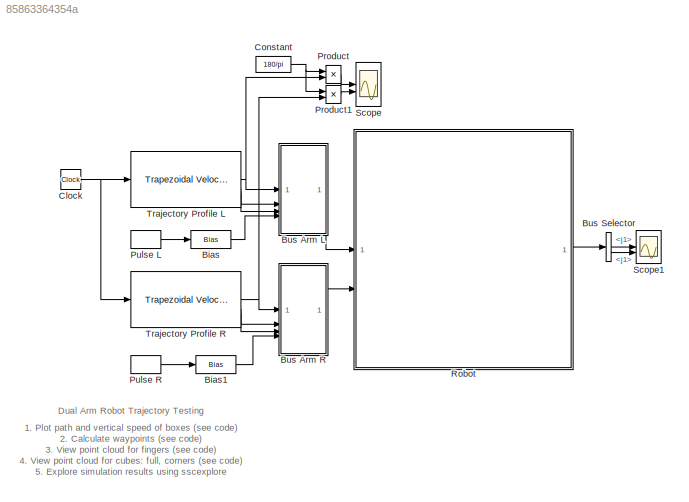
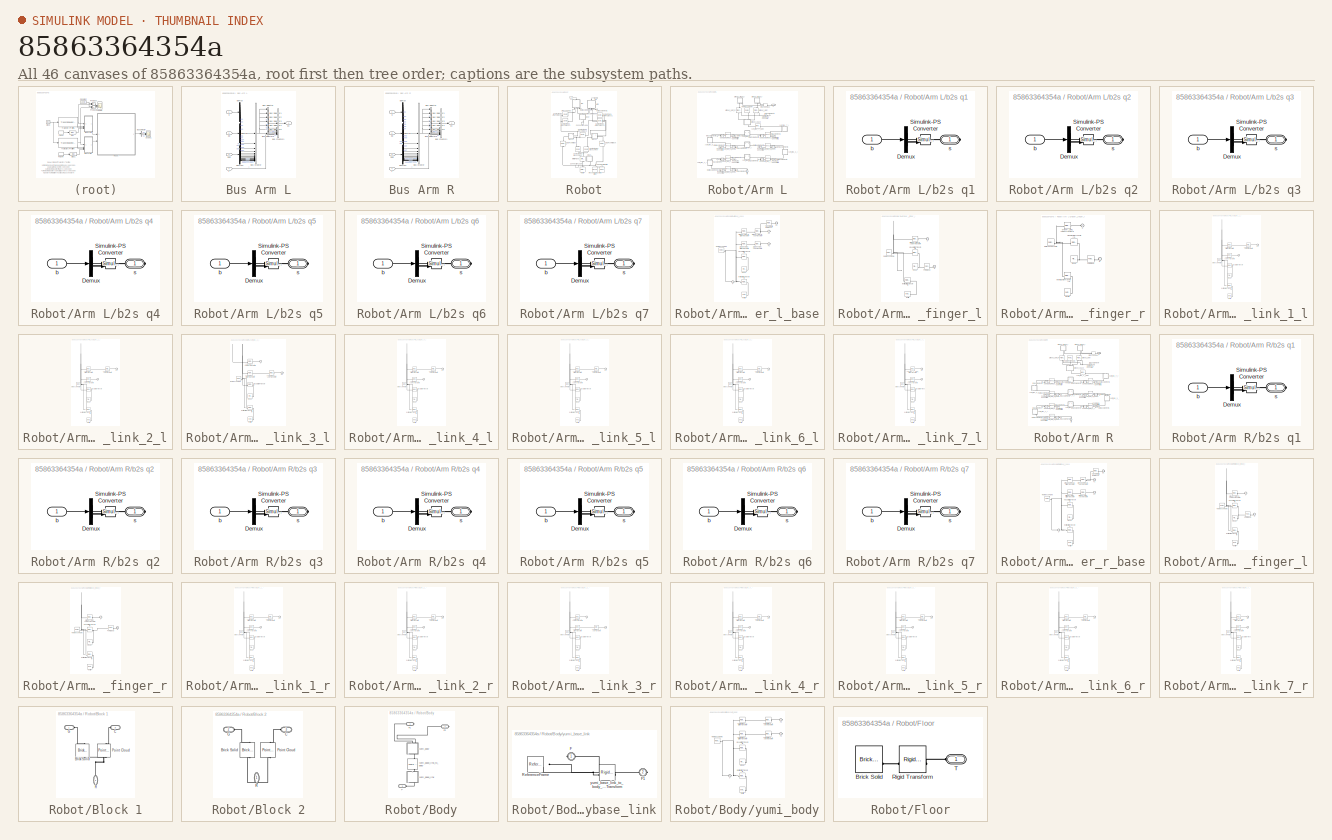
[diagram: thumbnail index - all 46 canvases of the model, root first then tree order]
MODEL slx_85863364354a
KIND model
CONFIG AbsTol = 1e-3
CONFIG EnableMultiTasking = off
CONFIG FixedStep = auto
CONFIG MaxStep = 0.5
CONFIG MinStep = auto
CONFIG RelTol = 1e-3
CONFIG SampleTimeConstraint = Unconstrained
CONFIG SolverName = daessc
CONFIG StartTime = 0.0
CONFIG StopTime = size(waypointsL,2)*segment_duration
BLOCK [Bias] Bias
  Bias = 0.02
  SaturateOnIntegerOverflow = off
BLOCK [Bias] Bias1
  Bias = 0.02
  SaturateOnIntegerOverflow = off
BLOCK [SubSystem] Bus Arm L
BLOCK [BusCreator] Bus Arm L/Bus Creator
  DisplayOption = bar
  InheritFromInputs = on
  Inputs = 21
BLOCK [BusCreator] Bus Arm L/Bus Creator1
  DisplayOption = bar
  InheritFromInputs = on
  Inputs = 8
BLOCK [BusSelector] Bus Arm L/Bus Selector
  OutputAsBus = on
  OutputSignals = q1,qd1,qdd1
BLOCK [BusSelector] Bus Arm L/Bus Selector1
  OutputAsBus = on
  OutputSignals = q2,qd2,qdd2
BLOCK [BusSelector] Bus Arm L/Bus Selector2
  OutputAsBus = on
  OutputSignals = q3,qd3,qdd3
BLOCK [BusSelector] Bus Arm L/Bus Selector3
  OutputAsBus = on
  OutputSignals = q4,qd4,qdd4
BLOCK [BusSelector] Bus Arm L/Bus Selector4
  OutputAsBus = on
  OutputSignals = q5,qd5,qdd5
BLOCK [BusSelector] Bus Arm L/Bus Selector5
  OutputAsBus = on
  OutputSignals = q6,qd6,qdd6
BLOCK [BusSelector] Bus Arm L/Bus Selector6
  OutputAsBus = on
  OutputSignals = q7,qd7,qdd7
BLOCK [Demux] Bus Arm L/Demux
  Outputs = 7
BLOCK [Demux] Bus Arm L/Demux1
  Outputs = 7
BLOCK [Demux] Bus Arm L/Demux2
  Outputs = 7
BLOCK [Inport] Bus Arm L/f
  Port = 4
BLOCK [Inport] Bus Arm L/q
BLOCK [Outport] Bus Arm L/qV
BLOCK [Inport] Bus Arm L/qd
  Port = 2
BLOCK [Inport] Bus Arm L/qdd
  Port = 3
BLOCK [SubSystem] Bus Arm R
BLOCK [BusCreator] Bus Arm R/Bus Creator
  DisplayOption = bar
  InheritFromInputs = on
  Inputs = 21
BLOCK [BusCreator] Bus Arm R/Bus Creator1
  DisplayOption = bar
  InheritFromInputs = on
  Inputs = 8
BLOCK [BusSelector] Bus Arm R/Bus Selector
  OutputAsBus = on
  OutputSignals = q1,qd1,qdd1
BLOCK [BusSelector] Bus Arm R/Bus Selector1
  OutputAsBus = on
  OutputSignals = q2,qd2,qdd2
BLOCK [BusSelector] Bus Arm R/Bus Selector2
  OutputAsBus = on
  OutputSignals = q3,qd3,qdd3
BLOCK [BusSelector] Bus Arm R/Bus Selector3
  OutputAsBus = on
  OutputSignals = q4,qd4,qdd4
BLOCK [BusSelector] Bus Arm R/Bus Selector4
  OutputAsBus = on
  OutputSignals = q5,qd5,qdd5
BLOCK [BusSelector] Bus Arm R/Bus Selector5
  OutputAsBus = on
  OutputSignals = q6,qd6,qdd6
BLOCK [BusSelector] Bus Arm R/Bus Selector6
  OutputAsBus = on
  OutputSignals = q7,qd7,qdd7
BLOCK [Demux] Bus Arm R/Demux
  Outputs = 7
BLOCK [Demux] Bus Arm R/Demux1
  Outputs = 7
BLOCK [Demux] Bus Arm R/Demux2
  Outputs = 7
BLOCK [Inport] Bus Arm R/f
  Port = 4
BLOCK [Inport] Bus Arm R/q
BLOCK [Outport] Bus Arm R/qV
BLOCK [Inport] Bus Arm R/qd
  Port = 2
BLOCK [Inport] Bus Arm R/qdd
  Port = 3
BLOCK [BusSelector] Bus Selector
  OutputSignals = trqL.j1,trqR.j1
BLOCK [Clock] Clock
BLOCK [Constant] Constant
  Value = 180/pi
BLOCK [Product] Product
BLOCK [Product] Product1
BLOCK [DiscretePulseGenerator] Pulse L
  Amplitude = -0.011
  Period = 100
  PhaseDelay = 2*segment_duration
  PulseType = Time based
  PulseWidth = 4*segment_duration
BLOCK [DiscretePulseGenerator] Pulse R
  Amplitude = -0.011
  Period = 100
  PhaseDelay = 6*segment_duration
  PulseType = Time based
  PulseWidth = 4*segment_duration
BLOCK [SubSystem] Robot
BLOCK [Reference] Robot/ Contact Force Block to Block  REF=sm_lib/Forces and
Torques/Spatial
Contact Force
  NameLocation = top
  SourceBlock = sm_lib/Forces and\nTorques/Spatial\nContact Force
  SourceType = Spatial\nContact Force
BLOCK [Reference] Robot/6-DOF Joint Block 1  REF=sm_lib/Joints/6-DOF Joint
  NameLocation = right
  SourceBlock = sm_lib/Joints/6-DOF Joint
  SourceType = 6-DOF Joint
BLOCK [Reference] Robot/6-DOF Joint Block 2  REF=sm_lib/Joints/6-DOF Joint
  NameLocation = left
  SourceBlock = sm_lib/Joints/6-DOF Joint
  SourceType = 6-DOF Joint
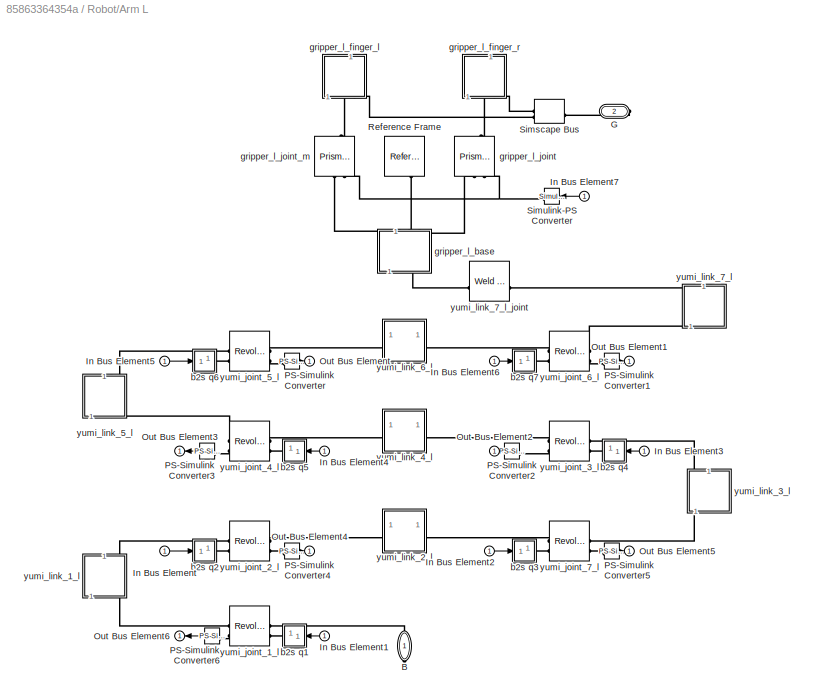
BLOCK [SubSystem] Robot/Arm L
  NameLocation = left
BLOCK [PMIOPort] Robot/Arm L/B
  NameLocation = right
  Side = Right
BLOCK [PMIOPort] Robot/Arm L/G
  Port = 2
  Side = Right
BLOCK [Inport] Robot/Arm L/In Bus Element
  NameLocation = top
BLOCK [Inport] Robot/Arm L/In Bus Element1
BLOCK [Inport] Robot/Arm L/In Bus Element2
BLOCK [Inport] Robot/Arm L/In Bus Element3
  NameLocation = top
BLOCK [Inport] Robot/Arm L/In Bus Element4
BLOCK [Inport] Robot/Arm L/In Bus Element5
BLOCK [Inport] Robot/Arm L/In Bus Element6
BLOCK [Inport] Robot/Arm L/In Bus Element7
BLOCK [Outport] Robot/Arm L/Out Bus Element
BLOCK [Outport] Robot/Arm L/Out Bus Element1
BLOCK [Outport] Robot/Arm L/Out Bus Element2
BLOCK [Outport] Robot/Arm L/Out Bus Element3
BLOCK [Outport] Robot/Arm L/Out Bus Element4
BLOCK [Outport] Robot/Arm L/Out Bus Element5
BLOCK [Outport] Robot/Arm L/Out Bus Element6
BLOCK [Reference] Robot/Arm L/PS-Simulink Converter  REF=nesl_utility/PS-Simulink
Converter
  SourceBlock = nesl_utility/PS-Simulink\nConverter
  SourceType = PS-Simulink\nConverter
BLOCK [Reference] Robot/Arm L/PS-Simulink Converter1  REF=nesl_utility/PS-Simulink
Converter
  SourceBlock = nesl_utility/PS-Simulink\nConverter
  SourceType = PS-Simulink\nConverter
BLOCK [Reference] Robot/Arm L/PS-Simulink Converter2  REF=nesl_utility/PS-Simulink
Converter
  SourceBlock = nesl_utility/PS-Simulink\nConverter
  SourceType = PS-Simulink\nConverter
BLOCK [Reference] Robot/Arm L/PS-Simulink Converter3  REF=nesl_utility/PS-Simulink
Converter
  SourceBlock = nesl_utility/PS-Simulink\nConverter
  SourceType = PS-Simulink\nConverter
BLOCK [Reference] Robot/Arm L/PS-Simulink Converter4  REF=nesl_utility/PS-Simulink
Converter
  SourceBlock = nesl_utility/PS-Simulink\nConverter
  SourceType = PS-Simulink\nConverter
BLOCK [Reference] Robot/Arm L/PS-Simulink Converter5  REF=nesl_utility/PS-Simulink
Converter
  SourceBlock = nesl_utility/PS-Simulink\nConverter
  SourceType = PS-Simulink\nConverter
BLOCK [Reference] Robot/Arm L/PS-Simulink Converter6  REF=nesl_utility/PS-Simulink
Converter
  SourceBlock = nesl_utility/PS-Simulink\nConverter
  SourceType = PS-Simulink\nConverter
BLOCK [Reference] Robot/Arm L/Reference Frame  REF=sm_lib/Frames and
Transforms/Reference
Frame
  NameLocation = right
  SourceBlock = sm_lib/Frames and\nTransforms/Reference\nFrame
  SourceType = Reference\nFrame
BLOCK [SimscapeBus] Robot/Arm L/Simscape Bus
  HierarchyStrings = F1;F2
BLOCK [Reference] Robot/Arm L/Simulink-PS Converter  REF=nesl_utility/Simulink-PS
Converter
  NameLocation = top
  SourceBlock = nesl_utility/Simulink-PS\nConverter
  SourceType = Simulink-PS\nConverter
BLOCK [SubSystem] Robot/Arm L/b2s q1
BLOCK [Demux] Robot/Arm L/b2s q1/Demux
  Outputs = 3
BLOCK [Reference] Robot/Arm L/b2s q1/Simulink-PS Converter  REF=nesl_utility/Simulink-PS
Converter
  SourceBlock = nesl_utility/Simulink-PS\nConverter
  SourceType = Simulink-PS\nConverter
BLOCK [Inport] Robot/Arm L/b2s q1/b
BLOCK [PMIOPort] Robot/Arm L/b2s q1/s
  Side = Right
BLOCK [SubSystem] Robot/Arm L/b2s q2
BLOCK [Demux] Robot/Arm L/b2s q2/Demux
  Outputs = 3
BLOCK [Reference] Robot/Arm L/b2s q2/Simulink-PS Converter  REF=nesl_utility/Simulink-PS
Converter
  SourceBlock = nesl_utility/Simulink-PS\nConverter
  SourceType = Simulink-PS\nConverter
BLOCK [Inport] Robot/Arm L/b2s q2/b
BLOCK [PMIOPort] Robot/Arm L/b2s q2/s
  Side = Right
BLOCK [SubSystem] Robot/Arm L/b2s q3
BLOCK [Demux] Robot/Arm L/b2s q3/Demux
  Outputs = 3
BLOCK [Reference] Robot/Arm L/b2s q3/Simulink-PS Converter  REF=nesl_utility/Simulink-PS
Converter
  SourceBlock = nesl_utility/Simulink-PS\nConverter
  SourceType = Simulink-PS\nConverter
BLOCK [Inport] Robot/Arm L/b2s q3/b
BLOCK [PMIOPort] Robot/Arm L/b2s q3/s
  Side = Right
BLOCK [SubSystem] Robot/Arm L/b2s q4
BLOCK [Demux] Robot/Arm L/b2s q4/Demux
  Outputs = 3
BLOCK [Reference] Robot/Arm L/b2s q4/Simulink-PS Converter  REF=nesl_utility/Simulink-PS
Converter
  SourceBlock = nesl_utility/Simulink-PS\nConverter
  SourceType = Simulink-PS\nConverter
BLOCK [Inport] Robot/Arm L/b2s q4/b
BLOCK [PMIOPort] Robot/Arm L/b2s q4/s
  Side = Right
BLOCK [SubSystem] Robot/Arm L/b2s q5
BLOCK [Demux] Robot/Arm L/b2s q5/Demux
  Outputs = 3
BLOCK [Reference] Robot/Arm L/b2s q5/Simulink-PS Converter  REF=nesl_utility/Simulink-PS
Converter
  SourceBlock = nesl_utility/Simulink-PS\nConverter
  SourceType = Simulink-PS\nConverter
BLOCK [Inport] Robot/Arm L/b2s q5/b
BLOCK [PMIOPort] Robot/Arm L/b2s q5/s
  Side = Right
BLOCK [SubSystem] Robot/Arm L/b2s q6
BLOCK [Demux] Robot/Arm L/b2s q6/Demux
  Outputs = 3
BLOCK [Reference] Robot/Arm L/b2s q6/Simulink-PS Converter  REF=nesl_utility/Simulink-PS
Converter
  SourceBlock = nesl_utility/Simulink-PS\nConverter
  SourceType = Simulink-PS\nConverter
BLOCK [Inport] Robot/Arm L/b2s q6/b
BLOCK [PMIOPort] Robot/Arm L/b2s q6/s
  Side = Right
BLOCK [SubSystem] Robot/Arm L/b2s q7
BLOCK [Demux] Robot/Arm L/b2s q7/Demux
  Outputs = 3
BLOCK [Reference] Robot/Arm L/b2s q7/Simulink-PS Converter  REF=nesl_utility/Simulink-PS
Converter
  SourceBlock = nesl_utility/Simulink-PS\nConverter
  SourceType = Simulink-PS\nConverter
BLOCK [Inport] Robot/Arm L/b2s q7/b
BLOCK [PMIOPort] Robot/Arm L/b2s q7/s
  Side = Right
BLOCK [SubSystem] Robot/Arm L/gripper_l_base
  NameLocation = left
BLOCK [PMIOPort] Robot/Arm L/gripper_l_base/F
  Side = Left
BLOCK [PMIOPort] Robot/Arm L/gripper_l_base/F1
  Port = 4
  Side = Right
BLOCK [PMIOPort] Robot/Arm L/gripper_l_base/F2
  Port = 2
  Side = Right
BLOCK [PMIOPort] Robot/Arm L/gripper_l_base/GC
  Port = 3
  Side = Right
BLOCK [Reference] Robot/Arm L/gripper_l_base/Inertia  REF=sm_lib/Body Elements/Inertia
  SourceBlock = sm_lib/Body Elements/Inertia
  SourceType = Inertia
BLOCK [Reference] Robot/Arm L/gripper_l_base/InertiaOriginTransform  REF=sm_lib/Frames and
Transforms/Rigid
Transform
  SourceBlock = sm_lib/Frames and\nTransforms/Rigid\nTransform
  SourceType = Rigid\nTransform
BLOCK [Reference] Robot/Arm L/gripper_l_base/ReferenceFrame  REF=sm_lib/Frames and
Transforms/Reference
Frame
  SourceBlock = sm_lib/Frames and\nTransforms/Reference\nFrame
  SourceType = Reference\nFrame
BLOCK [Reference] Robot/Arm L/gripper_l_base/Transform Grip Reference  REF=sm_lib/Frames and
Transforms/Rigid
Transform
  SourceBlock = sm_lib/Frames and\nTransforms/Rigid\nTransform
  SourceType = Rigid\nTransform
BLOCK [Reference] Robot/Arm L/gripper_l_base/Visual  REF=sm_lib/Body Elements/File Solid
  SourceBlock = sm_lib/Body Elements/File Solid
  SourceType = File Solid
BLOCK [Reference] Robot/Arm L/gripper_l_base/VisualOriginTransform  REF=sm_lib/Frames and
Transforms/Rigid
Transform
  SourceBlock = sm_lib/Frames and\nTransforms/Rigid\nTransform
  SourceType = Rigid\nTransform
BLOCK [Reference] Robot/Arm L/gripper_l_base/gripper_l_joint_AxisTransform  REF=sm_lib/Frames and
Transforms/Rigid
Transform
  SourceBlock = sm_lib/Frames and\nTransforms/Rigid\nTransform
  SourceType = Rigid\nTransform
BLOCK [Reference] Robot/Arm L/gripper_l_base/gripper_l_joint_OriginTransform  REF=sm_lib/Frames and
Transforms/Rigid
Transform
  SourceBlock = sm_lib/Frames and\nTransforms/Rigid\nTransform
  SourceType = Rigid\nTransform
BLOCK [Reference] Robot/Arm L/gripper_l_base/gripper_l_joint_m_AxisTransform  REF=sm_lib/Frames and
Transforms/Rigid
Transform
  SourceBlock = sm_lib/Frames and\nTransforms/Rigid\nTransform
  SourceType = Rigid\nTransform
BLOCK [Reference] Robot/Arm L/gripper_l_base/gripper_l_joint_m_OriginTransform  REF=sm_lib/Frames and
Transforms/Rigid
Transform
  SourceBlock = sm_lib/Frames and\nTransforms/Rigid\nTransform
  SourceType = Rigid\nTransform
BLOCK [SubSystem] Robot/Arm L/gripper_l_finger_l
  NameLocation = left
BLOCK [PMIOPort] Robot/Arm L/gripper_l_finger_l/F
  Side = Left
BLOCK [PMIOPort] Robot/Arm L/gripper_l_finger_l/G
  Port = 2
  Side = Left
BLOCK [Reference] Robot/Arm L/gripper_l_finger_l/Inertia  REF=sm_lib/Body Elements/Inertia
  SourceBlock = sm_lib/Body Elements/Inertia
  SourceType = Inertia
BLOCK [Reference] Robot/Arm L/gripper_l_finger_l/InertiaOriginTransform  REF=sm_lib/Frames and
Transforms/Rigid
Transform
  SourceBlock = sm_lib/Frames and\nTransforms/Rigid\nTransform
  SourceType = Rigid\nTransform
BLOCK [Reference] Robot/Arm L/gripper_l_finger_l/Point Cloud  REF=sm_lib/Curves and Surfaces/Point Cloud
  SourceBlock = sm_lib/Curves and Surfaces/Point Cloud
  SourceType = Point Cloud
BLOCK [Reference] Robot/Arm L/gripper_l_finger_l/ReferenceFrame  REF=sm_lib/Frames and
Transforms/Reference
Frame
  SourceBlock = sm_lib/Frames and\nTransforms/Reference\nFrame
  SourceType = Reference\nFrame
BLOCK [Reference] Robot/Arm L/gripper_l_finger_l/Visual  REF=sm_lib/Body Elements/File Solid
  SourceBlock = sm_lib/Body Elements/File Solid
  SourceType = File Solid
BLOCK [Reference] Robot/Arm L/gripper_l_finger_l/VisualOriginTransform  REF=sm_lib/Frames and
Transforms/Rigid
Transform
  SourceBlock = sm_lib/Frames and\nTransforms/Rigid\nTransform
  SourceType = Rigid\nTransform
BLOCK [Reference] Robot/Arm L/gripper_l_finger_l/gripper_l_joint_m_AxisInvTransform  REF=sm_lib/Frames and
Transforms/Rigid
Transform
  SourceBlock = sm_lib/Frames and\nTransforms/Rigid\nTransform
  SourceType = Rigid\nTransform
BLOCK [SubSystem] Robot/Arm L/gripper_l_finger_r
  NameLocation = right
BLOCK [PMIOPort] Robot/Arm L/gripper_l_finger_r/F
  Side = Left
BLOCK [PMIOPort] Robot/Arm L/gripper_l_finger_r/G
  Port = 2
  Side = Left
BLOCK [Reference] Robot/Arm L/gripper_l_finger_r/Inertia  REF=sm_lib/Body Elements/Inertia
  SourceBlock = sm_lib/Body Elements/Inertia
  SourceType = Inertia
BLOCK [Reference] Robot/Arm L/gripper_l_finger_r/InertiaOriginTransform  REF=sm_lib/Frames and
Transforms/Rigid
Transform
  SourceBlock = sm_lib/Frames and\nTransforms/Rigid\nTransform
  SourceType = Rigid\nTransform
BLOCK [Reference] Robot/Arm L/gripper_l_finger_r/Point Cloud  REF=sm_lib/Curves and Surfaces/Point Cloud
  SourceBlock = sm_lib/Curves and Surfaces/Point Cloud
  SourceType = Point Cloud
BLOCK [Reference] Robot/Arm L/gripper_l_finger_r/ReferenceFrame  REF=sm_lib/Frames and
Transforms/Reference
Frame
  SourceBlock = sm_lib/Frames and\nTransforms/Reference\nFrame
  SourceType = Reference\nFrame
BLOCK [Reference] Robot/Arm L/gripper_l_finger_r/Visual  REF=sm_lib/Body Elements/File Solid
  SourceBlock = sm_lib/Body Elements/File Solid
  SourceType = File Solid
BLOCK [Reference] Robot/Arm L/gripper_l_finger_r/VisualOriginTransform  REF=sm_lib/Frames and
Transforms/Rigid
Transform
  SourceBlock = sm_lib/Frames and\nTransforms/Rigid\nTransform
  SourceType = Rigid\nTransform
BLOCK [Reference] Robot/Arm L/gripper_l_finger_r/gripper_l_joint_AxisInvTransform  REF=sm_lib/Frames and
Transforms/Rigid
Transform
  SourceBlock = sm_lib/Frames and\nTransforms/Rigid\nTransform
  SourceType = Rigid\nTransform
BLOCK [Reference] Robot/Arm L/gripper_l_joint  REF=sm_lib/Joints/Prismatic
Joint
  NameLocation = right
  SourceBlock = sm_lib/Joints/Prismatic\nJoint
  SourceType = Prismatic\nJoint
BLOCK [Reference] Robot/Arm L/gripper_l_joint_m  REF=sm_lib/Joints/Prismatic
Joint
  NameLocation = left
  SourceBlock = sm_lib/Joints/Prismatic\nJoint
  SourceType = Prismatic\nJoint
BLOCK [Reference] Robot/Arm L/yumi_joint_1_l  REF=sm_lib/Joints/Revolute Joint
  SourceBlock = sm_lib/Joints/Revolute Joint
  SourceType = Revolute Joint
BLOCK [Reference] Robot/Arm L/yumi_joint_2_l  REF=sm_lib/Joints/Revolute Joint
  SourceBlock = sm_lib/Joints/Revolute Joint
  SourceType = Revolute Joint
BLOCK [Reference] Robot/Arm L/yumi_joint_3_l  REF=sm_lib/Joints/Revolute Joint
  SourceBlock = sm_lib/Joints/Revolute Joint
  SourceType = Revolute Joint
BLOCK [Reference] Robot/Arm L/yumi_joint_4_l  REF=sm_lib/Joints/Revolute Joint
  SourceBlock = sm_lib/Joints/Revolute Joint
  SourceType = Revolute Joint
BLOCK [Reference] Robot/Arm L/yumi_joint_5_l  REF=sm_lib/Joints/Revolute Joint
  SourceBlock = sm_lib/Joints/Revolute Joint
  SourceType = Revolute Joint
BLOCK [Reference] Robot/Arm L/yumi_joint_6_l  REF=sm_lib/Joints/Revolute Joint
  SourceBlock = sm_lib/Joints/Revolute Joint
  SourceType = Revolute Joint
BLOCK [Reference] Robot/Arm L/yumi_joint_7_l  REF=sm_lib/Joints/Revolute Joint
  SourceBlock = sm_lib/Joints/Revolute Joint
  SourceType = Revolute Joint
BLOCK [SubSystem] Robot/Arm L/yumi_link_1_l
  NameLocation = right
BLOCK [PMIOPort] Robot/Arm L/yumi_link_1_l/F
  Side = Left
BLOCK [PMIOPort] Robot/Arm L/yumi_link_1_l/F1
  Port = 2
  Side = Right
BLOCK [Reference] Robot/Arm L/yumi_link_1_l/Inertia  REF=sm_lib/Body Elements/Inertia
  SourceBlock = sm_lib/Body Elements/Inertia
  SourceType = Inertia
BLOCK [Reference] Robot/Arm L/yumi_link_1_l/InertiaOriginTransform  REF=sm_lib/Frames and
Transforms/Rigid
Transform
  SourceBlock = sm_lib/Frames and\nTransforms/Rigid\nTransform
  SourceType = Rigid\nTransform
BLOCK [Reference] Robot/Arm L/yumi_link_1_l/ReferenceFrame  REF=sm_lib/Frames and
Transforms/Reference
Frame
  SourceBlock = sm_lib/Frames and\nTransforms/Reference\nFrame
  SourceType = Reference\nFrame
BLOCK [Reference] Robot/Arm L/yumi_link_1_l/Visual  REF=sm_lib/Body Elements/File Solid
  SourceBlock = sm_lib/Body Elements/File Solid
  SourceType = File Solid
BLOCK [Reference] Robot/Arm L/yumi_link_1_l/VisualOriginTransform  REF=sm_lib/Frames and
Transforms/Rigid
Transform
  SourceBlock = sm_lib/Frames and\nTransforms/Rigid\nTransform
  SourceType = Rigid\nTransform
BLOCK [Reference] Robot/Arm L/yumi_link_1_l/yumi_joint_1_l_AxisInvTransform  REF=sm_lib/Frames and
Transforms/Rigid
Transform
  SourceBlock = sm_lib/Frames and\nTransforms/Rigid\nTransform
  SourceType = Rigid\nTransform
BLOCK [Reference] Robot/Arm L/yumi_link_1_l/yumi_joint_2_l_AxisTransform  REF=sm_lib/Frames and
Transforms/Rigid
Transform
  SourceBlock = sm_lib/Frames and\nTransforms/Rigid\nTransform
  SourceType = Rigid\nTransform
BLOCK [Reference] Robot/Arm L/yumi_link_1_l/yumi_joint_2_l_OriginTransform  REF=sm_lib/Frames and
Transforms/Rigid
Transform
  SourceBlock = sm_lib/Frames and\nTransforms/Rigid\nTransform
  SourceType = Rigid\nTransform
BLOCK [SubSystem] Robot/Arm L/yumi_link_2_l
BLOCK [PMIOPort] Robot/Arm L/yumi_link_2_l/F
  Side = Left
BLOCK [PMIOPort] Robot/Arm L/yumi_link_2_l/F1
  Port = 2
  Side = Right
BLOCK [Reference] Robot/Arm L/yumi_link_2_l/Inertia  REF=sm_lib/Body Elements/Inertia
  SourceBlock = sm_lib/Body Elements/Inertia
  SourceType = Inertia
BLOCK [Reference] Robot/Arm L/yumi_link_2_l/InertiaOriginTransform  REF=sm_lib/Frames and
Transforms/Rigid
Transform
  SourceBlock = sm_lib/Frames and\nTransforms/Rigid\nTransform
  SourceType = Rigid\nTransform
BLOCK [Reference] Robot/Arm L/yumi_link_2_l/ReferenceFrame  REF=sm_lib/Frames and
Transforms/Reference
Frame
  SourceBlock = sm_lib/Frames and\nTransforms/Reference\nFrame
  SourceType = Reference\nFrame
BLOCK [Reference] Robot/Arm L/yumi_link_2_l/Visual  REF=sm_lib/Body Elements/File Solid
  SourceBlock = sm_lib/Body Elements/File Solid
  SourceType = File Solid
BLOCK [Reference] Robot/Arm L/yumi_link_2_l/VisualOriginTransform  REF=sm_lib/Frames and
Transforms/Rigid
Transform
  SourceBlock = sm_lib/Frames and\nTransforms/Rigid\nTransform
  SourceType = Rigid\nTransform
BLOCK [Reference] Robot/Arm L/yumi_link_2_l/yumi_joint_2_l_AxisInvTransform  REF=sm_lib/Frames and
Transforms/Rigid
Transform
  SourceBlock = sm_lib/Frames and\nTransforms/Rigid\nTransform
  SourceType = Rigid\nTransform
BLOCK [Reference] Robot/Arm L/yumi_link_2_l/yumi_joint_7_l_AxisTransform  REF=sm_lib/Frames and
Transforms/Rigid
Transform
  SourceBlock = sm_lib/Frames and\nTransforms/Rigid\nTransform
  SourceType = Rigid\nTransform
BLOCK [Reference] Robot/Arm L/yumi_link_2_l/yumi_joint_7_l_OriginTransform  REF=sm_lib/Frames and
Transforms/Rigid
Transform
  SourceBlock = sm_lib/Frames and\nTransforms/Rigid\nTransform
  SourceType = Rigid\nTransform
BLOCK [SubSystem] Robot/Arm L/yumi_link_3_l
  NameLocation = left
BLOCK [PMIOPort] Robot/Arm L/yumi_link_3_l/F
  Side = Left
BLOCK [PMIOPort] Robot/Arm L/yumi_link_3_l/F1
  Port = 2
  Side = Right
BLOCK [Reference] Robot/Arm L/yumi_link_3_l/Inertia  REF=sm_lib/Body Elements/Inertia
  SourceBlock = sm_lib/Body Elements/Inertia
  SourceType = Inertia
BLOCK [Reference] Robot/Arm L/yumi_link_3_l/InertiaOriginTransform  REF=sm_lib/Frames and
Transforms/Rigid
Transform
  SourceBlock = sm_lib/Frames and\nTransforms/Rigid\nTransform
  SourceType = Rigid\nTransform
BLOCK [Reference] Robot/Arm L/yumi_link_3_l/ReferenceFrame  REF=sm_lib/Frames and
Transforms/Reference
Frame
  SourceBlock = sm_lib/Frames and\nTransforms/Reference\nFrame
  SourceType = Reference\nFrame
BLOCK [Reference] Robot/Arm L/yumi_link_3_l/Visual  REF=sm_lib/Body Elements/File Solid
  SourceBlock = sm_lib/Body Elements/File Solid
  SourceType = File Solid
BLOCK [Reference] Robot/Arm L/yumi_link_3_l/VisualOriginTransform  REF=sm_lib/Frames and
Transforms/Rigid
Transform
  SourceBlock = sm_lib/Frames and\nTransforms/Rigid\nTransform
  SourceType = Rigid\nTransform
BLOCK [Reference] Robot/Arm L/yumi_link_3_l/yumi_joint_3_l_AxisTransform  REF=sm_lib/Frames and
Transforms/Rigid
Transform
  SourceBlock = sm_lib/Frames and\nTransforms/Rigid\nTransform
  SourceType = Rigid\nTransform
BLOCK [Reference] Robot/Arm L/yumi_link_3_l/yumi_joint_3_l_OriginTransform  REF=sm_lib/Frames and
Transforms/Rigid
Transform
  SourceBlock = sm_lib/Frames and\nTransforms/Rigid\nTransform
  SourceType = Rigid\nTransform
BLOCK [Reference] Robot/Arm L/yumi_link_3_l/yumi_joint_7_l_AxisInvTransform  REF=sm_lib/Frames and
Transforms/Rigid
Transform
  SourceBlock = sm_lib/Frames and\nTransforms/Rigid\nTransform
  SourceType = Rigid\nTransform
BLOCK [SubSystem] Robot/Arm L/yumi_link_4_l
BLOCK [PMIOPort] Robot/Arm L/yumi_link_4_l/F
  Side = Left
BLOCK [PMIOPort] Robot/Arm L/yumi_link_4_l/F1
  Port = 2
  Side = Right
BLOCK [Reference] Robot/Arm L/yumi_link_4_l/Inertia  REF=sm_lib/Body Elements/Inertia
  SourceBlock = sm_lib/Body Elements/Inertia
  SourceType = Inertia
BLOCK [Reference] Robot/Arm L/yumi_link_4_l/InertiaOriginTransform  REF=sm_lib/Frames and
Transforms/Rigid
Transform
  SourceBlock = sm_lib/Frames and\nTransforms/Rigid\nTransform
  SourceType = Rigid\nTransform
BLOCK [Reference] Robot/Arm L/yumi_link_4_l/ReferenceFrame  REF=sm_lib/Frames and
Transforms/Reference
Frame
  SourceBlock = sm_lib/Frames and\nTransforms/Reference\nFrame
  SourceType = Reference\nFrame
BLOCK [Reference] Robot/Arm L/yumi_link_4_l/Visual  REF=sm_lib/Body Elements/File Solid
  SourceBlock = sm_lib/Body Elements/File Solid
  SourceType = File Solid
BLOCK [Reference] Robot/Arm L/yumi_link_4_l/VisualOriginTransform  REF=sm_lib/Frames and
Transforms/Rigid
Transform
  SourceBlock = sm_lib/Frames and\nTransforms/Rigid\nTransform
  SourceType = Rigid\nTransform
BLOCK [Reference] Robot/Arm L/yumi_link_4_l/yumi_joint_3_l_AxisInvTransform  REF=sm_lib/Frames and
Transforms/Rigid
Transform
  SourceBlock = sm_lib/Frames and\nTransforms/Rigid\nTransform
  SourceType = Rigid\nTransform
BLOCK [Reference] Robot/Arm L/yumi_link_4_l/yumi_joint_4_l_AxisTransform  REF=sm_lib/Frames and
Transforms/Rigid
Transform
  SourceBlock = sm_lib/Frames and\nTransforms/Rigid\nTransform
  SourceType = Rigid\nTransform
BLOCK [Reference] Robot/Arm L/yumi_link_4_l/yumi_joint_4_l_OriginTransform  REF=sm_lib/Frames and
Transforms/Rigid
Transform
  SourceBlock = sm_lib/Frames and\nTransforms/Rigid\nTransform
  SourceType = Rigid\nTransform
BLOCK [SubSystem] Robot/Arm L/yumi_link_5_l
  NameLocation = right
BLOCK [PMIOPort] Robot/Arm L/yumi_link_5_l/F
  Side = Left
BLOCK [PMIOPort] Robot/Arm L/yumi_link_5_l/F1
  Port = 2
  Side = Right
BLOCK [Reference] Robot/Arm L/yumi_link_5_l/Inertia  REF=sm_lib/Body Elements/Inertia
  SourceBlock = sm_lib/Body Elements/Inertia
  SourceType = Inertia
BLOCK [Reference] Robot/Arm L/yumi_link_5_l/InertiaOriginTransform  REF=sm_lib/Frames and
Transforms/Rigid
Transform
  SourceBlock = sm_lib/Frames and\nTransforms/Rigid\nTransform
  SourceType = Rigid\nTransform
BLOCK [Reference] Robot/Arm L/yumi_link_5_l/ReferenceFrame  REF=sm_lib/Frames and
Transforms/Reference
Frame
  SourceBlock = sm_lib/Frames and\nTransforms/Reference\nFrame
  SourceType = Reference\nFrame
BLOCK [Reference] Robot/Arm L/yumi_link_5_l/Visual  REF=sm_lib/Body Elements/File Solid
  SourceBlock = sm_lib/Body Elements/File Solid
  SourceType = File Solid
BLOCK [Reference] Robot/Arm L/yumi_link_5_l/VisualOriginTransform  REF=sm_lib/Frames and
Transforms/Rigid
Transform
  SourceBlock = sm_lib/Frames and\nTransforms/Rigid\nTransform
  SourceType = Rigid\nTransform
BLOCK [Reference] Robot/Arm L/yumi_link_5_l/yumi_joint_4_l_AxisInvTransform  REF=sm_lib/Frames and
Transforms/Rigid
Transform
  SourceBlock = sm_lib/Frames and\nTransforms/Rigid\nTransform
  SourceType = Rigid\nTransform
BLOCK [Reference] Robot/Arm L/yumi_link_5_l/yumi_joint_5_l_AxisTransform  REF=sm_lib/Frames and
Transforms/Rigid
Transform
  SourceBlock = sm_lib/Frames and\nTransforms/Rigid\nTransform
  SourceType = Rigid\nTransform
BLOCK [Reference] Robot/Arm L/yumi_link_5_l/yumi_joint_5_l_OriginTransform  REF=sm_lib/Frames and
Transforms/Rigid
Transform
  SourceBlock = sm_lib/Frames and\nTransforms/Rigid\nTransform
  SourceType = Rigid\nTransform
BLOCK [SubSystem] Robot/Arm L/yumi_link_6_l
BLOCK [PMIOPort] Robot/Arm L/yumi_link_6_l/F
  Side = Left
BLOCK [PMIOPort] Robot/Arm L/yumi_link_6_l/F1
  Port = 2
  Side = Right
BLOCK [Reference] Robot/Arm L/yumi_link_6_l/Inertia  REF=sm_lib/Body Elements/Inertia
  SourceBlock = sm_lib/Body Elements/Inertia
  SourceType = Inertia
BLOCK [Reference] Robot/Arm L/yumi_link_6_l/InertiaOriginTransform  REF=sm_lib/Frames and
Transforms/Rigid
Transform
  SourceBlock = sm_lib/Frames and\nTransforms/Rigid\nTransform
  SourceType = Rigid\nTransform
BLOCK [Reference] Robot/Arm L/yumi_link_6_l/ReferenceFrame  REF=sm_lib/Frames and
Transforms/Reference
Frame
  SourceBlock = sm_lib/Frames and\nTransforms/Reference\nFrame
  SourceType = Reference\nFrame
BLOCK [Reference] Robot/Arm L/yumi_link_6_l/Visual  REF=sm_lib/Body Elements/File Solid
  SourceBlock = sm_lib/Body Elements/File Solid
  SourceType = File Solid
BLOCK [Reference] Robot/Arm L/yumi_link_6_l/VisualOriginTransform  REF=sm_lib/Frames and
Transforms/Rigid
Transform
  SourceBlock = sm_lib/Frames and\nTransforms/Rigid\nTransform
  SourceType = Rigid\nTransform
BLOCK [Reference] Robot/Arm L/yumi_link_6_l/yumi_joint_5_l_AxisInvTransform  REF=sm_lib/Frames and
Transforms/Rigid
Transform
  SourceBlock = sm_lib/Frames and\nTransforms/Rigid\nTransform
  SourceType = Rigid\nTransform
BLOCK [Reference] Robot/Arm L/yumi_link_6_l/yumi_joint_6_l_AxisTransform  REF=sm_lib/Frames and
Transforms/Rigid
Transform
  SourceBlock = sm_lib/Frames and\nTransforms/Rigid\nTransform
  SourceType = Rigid\nTransform
BLOCK [Reference] Robot/Arm L/yumi_link_6_l/yumi_joint_6_l_OriginTransform  REF=sm_lib/Frames and
Transforms/Rigid
Transform
  SourceBlock = sm_lib/Frames and\nTransforms/Rigid\nTransform
  SourceType = Rigid\nTransform
BLOCK [SubSystem] Robot/Arm L/yumi_link_7_l
  NameLocation = left
BLOCK [PMIOPort] Robot/Arm L/yumi_link_7_l/F
  Side = Left
BLOCK [PMIOPort] Robot/Arm L/yumi_link_7_l/F1
  Port = 2
  Side = Right
BLOCK [Reference] Robot/Arm L/yumi_link_7_l/Inertia  REF=sm_lib/Body Elements/Inertia
  SourceBlock = sm_lib/Body Elements/Inertia
  SourceType = Inertia
BLOCK [Reference] Robot/Arm L/yumi_link_7_l/InertiaOriginTransform  REF=sm_lib/Frames and
Transforms/Rigid
Transform
  SourceBlock = sm_lib/Frames and\nTransforms/Rigid\nTransform
  SourceType = Rigid\nTransform
BLOCK [Reference] Robot/Arm L/yumi_link_7_l/ReferenceFrame  REF=sm_lib/Frames and
Transforms/Reference
Frame
  SourceBlock = sm_lib/Frames and\nTransforms/Reference\nFrame
  SourceType = Reference\nFrame
BLOCK [Reference] Robot/Arm L/yumi_link_7_l/Visual  REF=sm_lib/Body Elements/File Solid
  SourceBlock = sm_lib/Body Elements/File Solid
  SourceType = File Solid
BLOCK [Reference] Robot/Arm L/yumi_link_7_l/VisualOriginTransform  REF=sm_lib/Frames and
Transforms/Rigid
Transform
  SourceBlock = sm_lib/Frames and\nTransforms/Rigid\nTransform
  SourceType = Rigid\nTransform
BLOCK [Reference] Robot/Arm L/yumi_link_7_l/yumi_joint_6_l_AxisInvTransform  REF=sm_lib/Frames and
Transforms/Rigid
Transform
  SourceBlock = sm_lib/Frames and\nTransforms/Rigid\nTransform
  SourceType = Rigid\nTransform
BLOCK [Reference] Robot/Arm L/yumi_link_7_l/yumi_link_7_l_joint_OriginTransform  REF=sm_lib/Frames and
Transforms/Rigid
Transform
  SourceBlock = sm_lib/Frames and\nTransforms/Rigid\nTransform
  SourceType = Rigid\nTransform
BLOCK [Reference] Robot/Arm L/yumi_link_7_l_joint  REF=sm_lib/Joints/Weld Joint
  SourceBlock = sm_lib/Joints/Weld Joint
  SourceType = Weld Joint
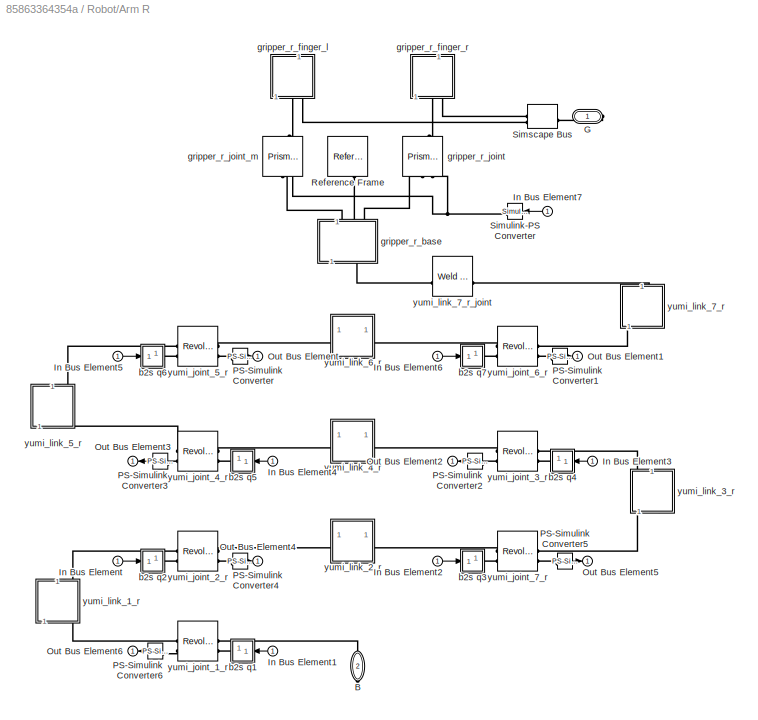
BLOCK [SubSystem] Robot/Arm R
  NameLocation = right
BLOCK [PMIOPort] Robot/Arm R/B
  NameLocation = left
  Port = 2
  Side = Right
BLOCK [PMIOPort] Robot/Arm R/G
  Side = Right
BLOCK [Inport] Robot/Arm R/In Bus Element
  NameLocation = top
BLOCK [Inport] Robot/Arm R/In Bus Element1
BLOCK [Inport] Robot/Arm R/In Bus Element2
BLOCK [Inport] Robot/Arm R/In Bus Element3
  NameLocation = top
BLOCK [Inport] Robot/Arm R/In Bus Element4
BLOCK [Inport] Robot/Arm R/In Bus Element5
BLOCK [Inport] Robot/Arm R/In Bus Element6
BLOCK [Inport] Robot/Arm R/In Bus Element7
BLOCK [Outport] Robot/Arm R/Out Bus Element
BLOCK [Outport] Robot/Arm R/Out Bus Element1
BLOCK [Outport] Robot/Arm R/Out Bus Element2
BLOCK [Outport] Robot/Arm R/Out Bus Element3
BLOCK [Outport] Robot/Arm R/Out Bus Element4
BLOCK [Outport] Robot/Arm R/Out Bus Element5
BLOCK [Outport] Robot/Arm R/Out Bus Element6
BLOCK [Reference] Robot/Arm R/PS-Simulink Converter  REF=nesl_utility/PS-Simulink
Converter
  SourceBlock = nesl_utility/PS-Simulink\nConverter
  SourceType = PS-Simulink\nConverter
BLOCK [Reference] Robot/Arm R/PS-Simulink Converter1  REF=nesl_utility/PS-Simulink
Converter
  SourceBlock = nesl_utility/PS-Simulink\nConverter
  SourceType = PS-Simulink\nConverter
BLOCK [Reference] Robot/Arm R/PS-Simulink Converter2  REF=nesl_utility/PS-Simulink
Converter
  SourceBlock = nesl_utility/PS-Simulink\nConverter
  SourceType = PS-Simulink\nConverter
BLOCK [Reference] Robot/Arm R/PS-Simulink Converter3  REF=nesl_utility/PS-Simulink
Converter
  SourceBlock = nesl_utility/PS-Simulink\nConverter
  SourceType = PS-Simulink\nConverter
BLOCK [Reference] Robot/Arm R/PS-Simulink Converter4  REF=nesl_utility/PS-Simulink
Converter
  SourceBlock = nesl_utility/PS-Simulink\nConverter
  SourceType = PS-Simulink\nConverter
BLOCK [Reference] Robot/Arm R/PS-Simulink Converter5  REF=nesl_utility/PS-Simulink
Converter
  SourceBlock = nesl_utility/PS-Simulink\nConverter
  SourceType = PS-Simulink\nConverter
BLOCK [Reference] Robot/Arm R/PS-Simulink Converter6  REF=nesl_utility/PS-Simulink
Converter
  SourceBlock = nesl_utility/PS-Simulink\nConverter
  SourceType = PS-Simulink\nConverter
BLOCK [Reference] Robot/Arm R/Reference Frame  REF=sm_lib/Frames and
Transforms/Reference
Frame
  NameLocation = right
  SourceBlock = sm_lib/Frames and\nTransforms/Reference\nFrame
  SourceType = Reference\nFrame
BLOCK [SimscapeBus] Robot/Arm R/Simscape Bus
  HierarchyStrings = F1;F2
BLOCK [Reference] Robot/Arm R/Simulink-PS Converter  REF=nesl_utility/Simulink-PS
Converter
  NameLocation = top
  SourceBlock = nesl_utility/Simulink-PS\nConverter
  SourceType = Simulink-PS\nConverter
BLOCK [SubSystem] Robot/Arm R/b2s q1
BLOCK [Demux] Robot/Arm R/b2s q1/Demux
  Outputs = 3
BLOCK [Reference] Robot/Arm R/b2s q1/Simulink-PS Converter  REF=nesl_utility/Simulink-PS
Converter
  SourceBlock = nesl_utility/Simulink-PS\nConverter
  SourceType = Simulink-PS\nConverter
BLOCK [Inport] Robot/Arm R/b2s q1/b
BLOCK [PMIOPort] Robot/Arm R/b2s q1/s
  Side = Right
BLOCK [SubSystem] Robot/Arm R/b2s q2
BLOCK [Demux] Robot/Arm R/b2s q2/Demux
  Outputs = 3
BLOCK [Reference] Robot/Arm R/b2s q2/Simulink-PS Converter  REF=nesl_utility/Simulink-PS
Converter
  SourceBlock = nesl_utility/Simulink-PS\nConverter
  SourceType = Simulink-PS\nConverter
BLOCK [Inport] Robot/Arm R/b2s q2/b
BLOCK [PMIOPort] Robot/Arm R/b2s q2/s
  Side = Right
BLOCK [SubSystem] Robot/Arm R/b2s q3
BLOCK [Demux] Robot/Arm R/b2s q3/Demux
  Outputs = 3
BLOCK [Reference] Robot/Arm R/b2s q3/Simulink-PS Converter  REF=nesl_utility/Simulink-PS
Converter
  SourceBlock = nesl_utility/Simulink-PS\nConverter
  SourceType = Simulink-PS\nConverter
BLOCK [Inport] Robot/Arm R/b2s q3/b
BLOCK [PMIOPort] Robot/Arm R/b2s q3/s
  Side = Right
BLOCK [SubSystem] Robot/Arm R/b2s q4
BLOCK [Demux] Robot/Arm R/b2s q4/Demux
  Outputs = 3
BLOCK [Reference] Robot/Arm R/b2s q4/Simulink-PS Converter  REF=nesl_utility/Simulink-PS
Converter
  SourceBlock = nesl_utility/Simulink-PS\nConverter
  SourceType = Simulink-PS\nConverter
BLOCK [Inport] Robot/Arm R/b2s q4/b
BLOCK [PMIOPort] Robot/Arm R/b2s q4/s
  Side = Right
BLOCK [SubSystem] Robot/Arm R/b2s q5
BLOCK [Demux] Robot/Arm R/b2s q5/Demux
  Outputs = 3
BLOCK [Reference] Robot/Arm R/b2s q5/Simulink-PS Converter  REF=nesl_utility/Simulink-PS
Converter
  SourceBlock = nesl_utility/Simulink-PS\nConverter
  SourceType = Simulink-PS\nConverter
BLOCK [Inport] Robot/Arm R/b2s q5/b
BLOCK [PMIOPort] Robot/Arm R/b2s q5/s
  Side = Right
BLOCK [SubSystem] Robot/Arm R/b2s q6
BLOCK [Demux] Robot/Arm R/b2s q6/Demux
  Outputs = 3
BLOCK [Reference] Robot/Arm R/b2s q6/Simulink-PS Converter  REF=nesl_utility/Simulink-PS
Converter
  SourceBlock = nesl_utility/Simulink-PS\nConverter
  SourceType = Simulink-PS\nConverter
BLOCK [Inport] Robot/Arm R/b2s q6/b
BLOCK [PMIOPort] Robot/Arm R/b2s q6/s
  Side = Right
BLOCK [SubSystem] Robot/Arm R/b2s q7
BLOCK [Demux] Robot/Arm R/b2s q7/Demux
  Outputs = 3
BLOCK [Reference] Robot/Arm R/b2s q7/Simulink-PS Converter  REF=nesl_utility/Simulink-PS
Converter
  SourceBlock = nesl_utility/Simulink-PS\nConverter
  SourceType = Simulink-PS\nConverter
BLOCK [Inport] Robot/Arm R/b2s q7/b
BLOCK [PMIOPort] Robot/Arm R/b2s q7/s
  Side = Right
BLOCK [SubSystem] Robot/Arm R/gripper_r_base
  NameLocation = right
BLOCK [PMIOPort] Robot/Arm R/gripper_r_base/F
  Side = Left
BLOCK [PMIOPort] Robot/Arm R/gripper_r_base/F1
  Port = 4
  Side = Right
BLOCK [PMIOPort] Robot/Arm R/gripper_r_base/F2
  Port = 2
  Side = Right
BLOCK [PMIOPort] Robot/Arm R/gripper_r_base/GC
  Port = 3
  Side = Right
BLOCK [Reference] Robot/Arm R/gripper_r_base/Inertia  REF=sm_lib/Body Elements/Inertia
  SourceBlock = sm_lib/Body Elements/Inertia
  SourceType = Inertia
BLOCK [Reference] Robot/Arm R/gripper_r_base/InertiaOriginTransform  REF=sm_lib/Frames and
Transforms/Rigid
Transform
  SourceBlock = sm_lib/Frames and\nTransforms/Rigid\nTransform
  SourceType = Rigid\nTransform
BLOCK [Reference] Robot/Arm R/gripper_r_base/ReferenceFrame  REF=sm_lib/Frames and
Transforms/Reference
Frame
  SourceBlock = sm_lib/Frames and\nTransforms/Reference\nFrame
  SourceType = Reference\nFrame
BLOCK [Reference] Robot/Arm R/gripper_r_base/Transform Grip Reference  REF=sm_lib/Frames and
Transforms/Rigid
Transform
  SourceBlock = sm_lib/Frames and\nTransforms/Rigid\nTransform
  SourceType = Rigid\nTransform
BLOCK [Reference] Robot/Arm R/gripper_r_base/Visual  REF=sm_lib/Body Elements/File Solid
  SourceBlock = sm_lib/Body Elements/File Solid
  SourceType = File Solid
BLOCK [Reference] Robot/Arm R/gripper_r_base/VisualOriginTransform  REF=sm_lib/Frames and
Transforms/Rigid
Transform
  SourceBlock = sm_lib/Frames and\nTransforms/Rigid\nTransform
  SourceType = Rigid\nTransform
BLOCK [Reference] Robot/Arm R/gripper_r_base/gripper_r_joint_AxisTransform  REF=sm_lib/Frames and
Transforms/Rigid
Transform
  SourceBlock = sm_lib/Frames and\nTransforms/Rigid\nTransform
  SourceType = Rigid\nTransform
BLOCK [Reference] Robot/Arm R/gripper_r_base/gripper_r_joint_OriginTransform  REF=sm_lib/Frames and
Transforms/Rigid
Transform
  SourceBlock = sm_lib/Frames and\nTransforms/Rigid\nTransform
  SourceType = Rigid\nTransform
BLOCK [Reference] Robot/Arm R/gripper_r_base/gripper_r_joint_m_AxisTransform  REF=sm_lib/Frames and
Transforms/Rigid
Transform
  SourceBlock = sm_lib/Frames and\nTransforms/Rigid\nTransform
  SourceType = Rigid\nTransform
BLOCK [Reference] Robot/Arm R/gripper_r_base/gripper_r_joint_m_OriginTransform  REF=sm_lib/Frames and
Transforms/Rigid
Transform
  SourceBlock = sm_lib/Frames and\nTransforms/Rigid\nTransform
  SourceType = Rigid\nTransform
BLOCK [SubSystem] Robot/Arm R/gripper_r_finger_l
  NameLocation = left
BLOCK [PMIOPort] Robot/Arm R/gripper_r_finger_l/F
  Side = Left
BLOCK [PMIOPort] Robot/Arm R/gripper_r_finger_l/G
  Port = 2
  Side = Left
BLOCK [Reference] Robot/Arm R/gripper_r_finger_l/Inertia  REF=sm_lib/Body Elements/Inertia
  SourceBlock = sm_lib/Body Elements/Inertia
  SourceType = Inertia
BLOCK [Reference] Robot/Arm R/gripper_r_finger_l/InertiaOriginTransform  REF=sm_lib/Frames and
Transforms/Rigid
Transform
  SourceBlock = sm_lib/Frames and\nTransforms/Rigid\nTransform
  SourceType = Rigid\nTransform
BLOCK [Reference] Robot/Arm R/gripper_r_finger_l/Point Cloud  REF=sm_lib/Curves and Surfaces/Point Cloud
  SourceBlock = sm_lib/Curves and Surfaces/Point Cloud
  SourceType = Point Cloud
BLOCK [Reference] Robot/Arm R/gripper_r_finger_l/ReferenceFrame  REF=sm_lib/Frames and
Transforms/Reference
Frame
  SourceBlock = sm_lib/Frames and\nTransforms/Reference\nFrame
  SourceType = Reference\nFrame
BLOCK [Reference] Robot/Arm R/gripper_r_finger_l/Visual  REF=sm_lib/Body Elements/File Solid
  SourceBlock = sm_lib/Body Elements/File Solid
  SourceType = File Solid
BLOCK [Reference] Robot/Arm R/gripper_r_finger_l/VisualOriginTransform  REF=sm_lib/Frames and
Transforms/Rigid
Transform
  SourceBlock = sm_lib/Frames and\nTransforms/Rigid\nTransform
  SourceType = Rigid\nTransform
BLOCK [Reference] Robot/Arm R/gripper_r_finger_l/gripper_r_joint_m_AxisInvTransform  REF=sm_lib/Frames and
Transforms/Rigid
Transform
  SourceBlock = sm_lib/Frames and\nTransforms/Rigid\nTransform
  SourceType = Rigid\nTransform
BLOCK [SubSystem] Robot/Arm R/gripper_r_finger_r
  NameLocation = right
BLOCK [PMIOPort] Robot/Arm R/gripper_r_finger_r/F
  Side = Left
BLOCK [PMIOPort] Robot/Arm R/gripper_r_finger_r/G
  Port = 2
  Side = Left
BLOCK [Reference] Robot/Arm R/gripper_r_finger_r/Inertia  REF=sm_lib/Body Elements/Inertia
  SourceBlock = sm_lib/Body Elements/Inertia
  SourceType = Inertia
BLOCK [Reference] Robot/Arm R/gripper_r_finger_r/InertiaOriginTransform  REF=sm_lib/Frames and
Transforms/Rigid
Transform
  SourceBlock = sm_lib/Frames and\nTransforms/Rigid\nTransform
  SourceType = Rigid\nTransform
BLOCK [Reference] Robot/Arm R/gripper_r_finger_r/Point Cloud  REF=sm_lib/Curves and Surfaces/Point Cloud
  SourceBlock = sm_lib/Curves and Surfaces/Point Cloud
  SourceType = Point Cloud
BLOCK [Reference] Robot/Arm R/gripper_r_finger_r/ReferenceFrame  REF=sm_lib/Frames and
Transforms/Reference
Frame
  SourceBlock = sm_lib/Frames and\nTransforms/Reference\nFrame
  SourceType = Reference\nFrame
BLOCK [Reference] Robot/Arm R/gripper_r_finger_r/Visual  REF=sm_lib/Body Elements/File Solid
  SourceBlock = sm_lib/Body Elements/File Solid
  SourceType = File Solid
BLOCK [Reference] Robot/Arm R/gripper_r_finger_r/VisualOriginTransform  REF=sm_lib/Frames and
Transforms/Rigid
Transform
  SourceBlock = sm_lib/Frames and\nTransforms/Rigid\nTransform
  SourceType = Rigid\nTransform
BLOCK [Reference] Robot/Arm R/gripper_r_finger_r/gripper_r_joint_AxisInvTransform  REF=sm_lib/Frames and
Transforms/Rigid
Transform
  SourceBlock = sm_lib/Frames and\nTransforms/Rigid\nTransform
  SourceType = Rigid\nTransform
BLOCK [Reference] Robot/Arm R/gripper_r_joint  REF=sm_lib/Joints/Prismatic
Joint
  NameLocation = right
  SourceBlock = sm_lib/Joints/Prismatic\nJoint
  SourceType = Prismatic\nJoint
BLOCK [Reference] Robot/Arm R/gripper_r_joint_m  REF=sm_lib/Joints/Prismatic
Joint
  NameLocation = left
  SourceBlock = sm_lib/Joints/Prismatic\nJoint
  SourceType = Prismatic\nJoint
BLOCK [Reference] Robot/Arm R/yumi_joint_1_r  REF=sm_lib/Joints/Revolute Joint
  SourceBlock = sm_lib/Joints/Revolute Joint
  SourceType = Revolute Joint
BLOCK [Reference] Robot/Arm R/yumi_joint_2_r  REF=sm_lib/Joints/Revolute Joint
  SourceBlock = sm_lib/Joints/Revolute Joint
  SourceType = Revolute Joint
BLOCK [Reference] Robot/Arm R/yumi_joint_3_r  REF=sm_lib/Joints/Revolute Joint
  SourceBlock = sm_lib/Joints/Revolute Joint
  SourceType = Revolute Joint
BLOCK [Reference] Robot/Arm R/yumi_joint_4_r  REF=sm_lib/Joints/Revolute Joint
  SourceBlock = sm_lib/Joints/Revolute Joint
  SourceType = Revolute Joint
BLOCK [Reference] Robot/Arm R/yumi_joint_5_r  REF=sm_lib/Joints/Revolute Joint
  SourceBlock = sm_lib/Joints/Revolute Joint
  SourceType = Revolute Joint
BLOCK [Reference] Robot/Arm R/yumi_joint_6_r  REF=sm_lib/Joints/Revolute Joint
  SourceBlock = sm_lib/Joints/Revolute Joint
  SourceType = Revolute Joint
BLOCK [Reference] Robot/Arm R/yumi_joint_7_r  REF=sm_lib/Joints/Revolute Joint
  SourceBlock = sm_lib/Joints/Revolute Joint
  SourceType = Revolute Joint
BLOCK [SubSystem] Robot/Arm R/yumi_link_1_r
  NameLocation = right
BLOCK [PMIOPort] Robot/Arm R/yumi_link_1_r/F
  Side = Left
BLOCK [PMIOPort] Robot/Arm R/yumi_link_1_r/F1
  Port = 2
  Side = Right
BLOCK [Reference] Robot/Arm R/yumi_link_1_r/Inertia  REF=sm_lib/Body Elements/Inertia
  SourceBlock = sm_lib/Body Elements/Inertia
  SourceType = Inertia
BLOCK [Reference] Robot/Arm R/yumi_link_1_r/InertiaOriginTransform  REF=sm_lib/Frames and
Transforms/Rigid
Transform
  SourceBlock = sm_lib/Frames and\nTransforms/Rigid\nTransform
  SourceType = Rigid\nTransform
BLOCK [Reference] Robot/Arm R/yumi_link_1_r/ReferenceFrame  REF=sm_lib/Frames and
Transforms/Reference
Frame
  SourceBlock = sm_lib/Frames and\nTransforms/Reference\nFrame
  SourceType = Reference\nFrame
BLOCK [Reference] Robot/Arm R/yumi_link_1_r/Visual  REF=sm_lib/Body Elements/File Solid
  SourceBlock = sm_lib/Body Elements/File Solid
  SourceType = File Solid
BLOCK [Reference] Robot/Arm R/yumi_link_1_r/VisualOriginTransform  REF=sm_lib/Frames and
Transforms/Rigid
Transform
  SourceBlock = sm_lib/Frames and\nTransforms/Rigid\nTransform
  SourceType = Rigid\nTransform
BLOCK [Reference] Robot/Arm R/yumi_link_1_r/yumi_joint_1_r_AxisInvTransform  REF=sm_lib/Frames and
Transforms/Rigid
Transform
  SourceBlock = sm_lib/Frames and\nTransforms/Rigid\nTransform
  SourceType = Rigid\nTransform
BLOCK [Reference] Robot/Arm R/yumi_link_1_r/yumi_joint_2_r_AxisTransform  REF=sm_lib/Frames and
Transforms/Rigid
Transform
  SourceBlock = sm_lib/Frames and\nTransforms/Rigid\nTransform
  SourceType = Rigid\nTransform
BLOCK [Reference] Robot/Arm R/yumi_link_1_r/yumi_joint_2_r_OriginTransform  REF=sm_lib/Frames and
Transforms/Rigid
Transform
  SourceBlock = sm_lib/Frames and\nTransforms/Rigid\nTransform
  SourceType = Rigid\nTransform
BLOCK [SubSystem] Robot/Arm R/yumi_link_2_r
BLOCK [PMIOPort] Robot/Arm R/yumi_link_2_r/F
  Side = Left
BLOCK [PMIOPort] Robot/Arm R/yumi_link_2_r/F1
  Port = 2
  Side = Right
BLOCK [Reference] Robot/Arm R/yumi_link_2_r/Inertia  REF=sm_lib/Body Elements/Inertia
  SourceBlock = sm_lib/Body Elements/Inertia
  SourceType = Inertia
BLOCK [Reference] Robot/Arm R/yumi_link_2_r/InertiaOriginTransform  REF=sm_lib/Frames and
Transforms/Rigid
Transform
  SourceBlock = sm_lib/Frames and\nTransforms/Rigid\nTransform
  SourceType = Rigid\nTransform
BLOCK [Reference] Robot/Arm R/yumi_link_2_r/ReferenceFrame  REF=sm_lib/Frames and
Transforms/Reference
Frame
  SourceBlock = sm_lib/Frames and\nTransforms/Reference\nFrame
  SourceType = Reference\nFrame
BLOCK [Reference] Robot/Arm R/yumi_link_2_r/Visual  REF=sm_lib/Body Elements/File Solid
  SourceBlock = sm_lib/Body Elements/File Solid
  SourceType = File Solid
BLOCK [Reference] Robot/Arm R/yumi_link_2_r/VisualOriginTransform  REF=sm_lib/Frames and
Transforms/Rigid
Transform
  SourceBlock = sm_lib/Frames and\nTransforms/Rigid\nTransform
  SourceType = Rigid\nTransform
BLOCK [Reference] Robot/Arm R/yumi_link_2_r/yumi_joint_2_r_AxisInvTransform  REF=sm_lib/Frames and
Transforms/Rigid
Transform
  SourceBlock = sm_lib/Frames and\nTransforms/Rigid\nTransform
  SourceType = Rigid\nTransform
BLOCK [Reference] Robot/Arm R/yumi_link_2_r/yumi_joint_7_r_AxisTransform  REF=sm_lib/Frames and
Transforms/Rigid
Transform
  SourceBlock = sm_lib/Frames and\nTransforms/Rigid\nTransform
  SourceType = Rigid\nTransform
BLOCK [Reference] Robot/Arm R/yumi_link_2_r/yumi_joint_7_r_OriginTransform  REF=sm_lib/Frames and
Transforms/Rigid
Transform
  SourceBlock = sm_lib/Frames and\nTransforms/Rigid\nTransform
  SourceType = Rigid\nTransform
BLOCK [SubSystem] Robot/Arm R/yumi_link_3_r
  NameLocation = left
BLOCK [PMIOPort] Robot/Arm R/yumi_link_3_r/F
  Side = Left
BLOCK [PMIOPort] Robot/Arm R/yumi_link_3_r/F1
  Port = 2
  Side = Right
BLOCK [Reference] Robot/Arm R/yumi_link_3_r/Inertia  REF=sm_lib/Body Elements/Inertia
  SourceBlock = sm_lib/Body Elements/Inertia
  SourceType = Inertia
BLOCK [Reference] Robot/Arm R/yumi_link_3_r/InertiaOriginTransform  REF=sm_lib/Frames and
Transforms/Rigid
Transform
  SourceBlock = sm_lib/Frames and\nTransforms/Rigid\nTransform
  SourceType = Rigid\nTransform
BLOCK [Reference] Robot/Arm R/yumi_link_3_r/ReferenceFrame  REF=sm_lib/Frames and
Transforms/Reference
Frame
  SourceBlock = sm_lib/Frames and\nTransforms/Reference\nFrame
  SourceType = Reference\nFrame
BLOCK [Reference] Robot/Arm R/yumi_link_3_r/Visual  REF=sm_lib/Body Elements/File Solid
  SourceBlock = sm_lib/Body Elements/File Solid
  SourceType = File Solid
BLOCK [Reference] Robot/Arm R/yumi_link_3_r/VisualOriginTransform  REF=sm_lib/Frames and
Transforms/Rigid
Transform
  SourceBlock = sm_lib/Frames and\nTransforms/Rigid\nTransform
  SourceType = Rigid\nTransform
BLOCK [Reference] Robot/Arm R/yumi_link_3_r/yumi_joint_3_r_AxisTransform  REF=sm_lib/Frames and
Transforms/Rigid
Transform
  SourceBlock = sm_lib/Frames and\nTransforms/Rigid\nTransform
  SourceType = Rigid\nTransform
BLOCK [Reference] Robot/Arm R/yumi_link_3_r/yumi_joint_3_r_OriginTransform  REF=sm_lib/Frames and
Transforms/Rigid
Transform
  SourceBlock = sm_lib/Frames and\nTransforms/Rigid\nTransform
  SourceType = Rigid\nTransform
BLOCK [Reference] Robot/Arm R/yumi_link_3_r/yumi_joint_7_r_AxisInvTransform  REF=sm_lib/Frames and
Transforms/Rigid
Transform
  SourceBlock = sm_lib/Frames and\nTransforms/Rigid\nTransform
  SourceType = Rigid\nTransform
BLOCK [SubSystem] Robot/Arm R/yumi_link_4_r
BLOCK [PMIOPort] Robot/Arm R/yumi_link_4_r/F
  Side = Left
BLOCK [PMIOPort] Robot/Arm R/yumi_link_4_r/F1
  Port = 2
  Side = Right
BLOCK [Reference] Robot/Arm R/yumi_link_4_r/Inertia  REF=sm_lib/Body Elements/Inertia
  SourceBlock = sm_lib/Body Elements/Inertia
  SourceType = Inertia
BLOCK [Reference] Robot/Arm R/yumi_link_4_r/InertiaOriginTransform  REF=sm_lib/Frames and
Transforms/Rigid
Transform
  SourceBlock = sm_lib/Frames and\nTransforms/Rigid\nTransform
  SourceType = Rigid\nTransform
BLOCK [Reference] Robot/Arm R/yumi_link_4_r/ReferenceFrame  REF=sm_lib/Frames and
Transforms/Reference
Frame
  SourceBlock = sm_lib/Frames and\nTransforms/Reference\nFrame
  SourceType = Reference\nFrame
BLOCK [Reference] Robot/Arm R/yumi_link_4_r/Visual  REF=sm_lib/Body Elements/File Solid
  SourceBlock = sm_lib/Body Elements/File Solid
  SourceType = File Solid
BLOCK [Reference] Robot/Arm R/yumi_link_4_r/VisualOriginTransform  REF=sm_lib/Frames and
Transforms/Rigid
Transform
  SourceBlock = sm_lib/Frames and\nTransforms/Rigid\nTransform
  SourceType = Rigid\nTransform
BLOCK [Reference] Robot/Arm R/yumi_link_4_r/yumi_joint_3_r_AxisInvTransform  REF=sm_lib/Frames and
Transforms/Rigid
Transform
  SourceBlock = sm_lib/Frames and\nTransforms/Rigid\nTransform
  SourceType = Rigid\nTransform
BLOCK [Reference] Robot/Arm R/yumi_link_4_r/yumi_joint_4_r_AxisTransform  REF=sm_lib/Frames and
Transforms/Rigid
Transform
  SourceBlock = sm_lib/Frames and\nTransforms/Rigid\nTransform
  SourceType = Rigid\nTransform
BLOCK [Reference] Robot/Arm R/yumi_link_4_r/yumi_joint_4_r_OriginTransform  REF=sm_lib/Frames and
Transforms/Rigid
Transform
  SourceBlock = sm_lib/Frames and\nTransforms/Rigid\nTransform
  SourceType = Rigid\nTransform
BLOCK [SubSystem] Robot/Arm R/yumi_link_5_r
  NameLocation = right
BLOCK [PMIOPort] Robot/Arm R/yumi_link_5_r/F
  Side = Left
BLOCK [PMIOPort] Robot/Arm R/yumi_link_5_r/F1
  Port = 2
  Side = Right
BLOCK [Reference] Robot/Arm R/yumi_link_5_r/Inertia  REF=sm_lib/Body Elements/Inertia
  SourceBlock = sm_lib/Body Elements/Inertia
  SourceType = Inertia
BLOCK [Reference] Robot/Arm R/yumi_link_5_r/InertiaOriginTransform  REF=sm_lib/Frames and
Transforms/Rigid
Transform
  SourceBlock = sm_lib/Frames and\nTransforms/Rigid\nTransform
  SourceType = Rigid\nTransform
BLOCK [Reference] Robot/Arm R/yumi_link_5_r/ReferenceFrame  REF=sm_lib/Frames and
Transforms/Reference
Frame
  SourceBlock = sm_lib/Frames and\nTransforms/Reference\nFrame
  SourceType = Reference\nFrame
BLOCK [Reference] Robot/Arm R/yumi_link_5_r/Visual  REF=sm_lib/Body Elements/File Solid
  SourceBlock = sm_lib/Body Elements/File Solid
  SourceType = File Solid
BLOCK [Reference] Robot/Arm R/yumi_link_5_r/VisualOriginTransform  REF=sm_lib/Frames and
Transforms/Rigid
Transform
  SourceBlock = sm_lib/Frames and\nTransforms/Rigid\nTransform
  SourceType = Rigid\nTransform
BLOCK [Reference] Robot/Arm R/yumi_link_5_r/yumi_joint_4_r_AxisInvTransform  REF=sm_lib/Frames and
Transforms/Rigid
Transform
  SourceBlock = sm_lib/Frames and\nTransforms/Rigid\nTransform
  SourceType = Rigid\nTransform
BLOCK [Reference] Robot/Arm R/yumi_link_5_r/yumi_joint_5_r_AxisTransform  REF=sm_lib/Frames and
Transforms/Rigid
Transform
  SourceBlock = sm_lib/Frames and\nTransforms/Rigid\nTransform
  SourceType = Rigid\nTransform
BLOCK [Reference] Robot/Arm R/yumi_link_5_r/yumi_joint_5_r_OriginTransform  REF=sm_lib/Frames and
Transforms/Rigid
Transform
  SourceBlock = sm_lib/Frames and\nTransforms/Rigid\nTransform
  SourceType = Rigid\nTransform
BLOCK [SubSystem] Robot/Arm R/yumi_link_6_r
BLOCK [PMIOPort] Robot/Arm R/yumi_link_6_r/F
  Side = Left
BLOCK [PMIOPort] Robot/Arm R/yumi_link_6_r/F1
  Port = 2
  Side = Right
BLOCK [Reference] Robot/Arm R/yumi_link_6_r/Inertia  REF=sm_lib/Body Elements/Inertia
  SourceBlock = sm_lib/Body Elements/Inertia
  SourceType = Inertia
BLOCK [Reference] Robot/Arm R/yumi_link_6_r/InertiaOriginTransform  REF=sm_lib/Frames and
Transforms/Rigid
Transform
  SourceBlock = sm_lib/Frames and\nTransforms/Rigid\nTransform
  SourceType = Rigid\nTransform
BLOCK [Reference] Robot/Arm R/yumi_link_6_r/ReferenceFrame  REF=sm_lib/Frames and
Transforms/Reference
Frame
  SourceBlock = sm_lib/Frames and\nTransforms/Reference\nFrame
  SourceType = Reference\nFrame
BLOCK [Reference] Robot/Arm R/yumi_link_6_r/Visual  REF=sm_lib/Body Elements/File Solid
  SourceBlock = sm_lib/Body Elements/File Solid
  SourceType = File Solid
BLOCK [Reference] Robot/Arm R/yumi_link_6_r/VisualOriginTransform  REF=sm_lib/Frames and
Transforms/Rigid
Transform
  SourceBlock = sm_lib/Frames and\nTransforms/Rigid\nTransform
  SourceType = Rigid\nTransform
BLOCK [Reference] Robot/Arm R/yumi_link_6_r/yumi_joint_5_r_AxisInvTransform  REF=sm_lib/Frames and
Transforms/Rigid
Transform
  SourceBlock = sm_lib/Frames and\nTransforms/Rigid\nTransform
  SourceType = Rigid\nTransform
BLOCK [Reference] Robot/Arm R/yumi_link_6_r/yumi_joint_6_r_AxisTransform  REF=sm_lib/Frames and
Transforms/Rigid
Transform
  SourceBlock = sm_lib/Frames and\nTransforms/Rigid\nTransform
  SourceType = Rigid\nTransform
BLOCK [Reference] Robot/Arm R/yumi_link_6_r/yumi_joint_6_r_OriginTransform  REF=sm_lib/Frames and
Transforms/Rigid
Transform
  SourceBlock = sm_lib/Frames and\nTransforms/Rigid\nTransform
  SourceType = Rigid\nTransform
BLOCK [SubSystem] Robot/Arm R/yumi_link_7_r
  NameLocation = left
BLOCK [PMIOPort] Robot/Arm R/yumi_link_7_r/F
  Side = Left
BLOCK [PMIOPort] Robot/Arm R/yumi_link_7_r/F1
  Port = 2
  Side = Right
BLOCK [Reference] Robot/Arm R/yumi_link_7_r/Inertia  REF=sm_lib/Body Elements/Inertia
  SourceBlock = sm_lib/Body Elements/Inertia
  SourceType = Inertia
BLOCK [Reference] Robot/Arm R/yumi_link_7_r/InertiaOriginTransform  REF=sm_lib/Frames and
Transforms/Rigid
Transform
  SourceBlock = sm_lib/Frames and\nTransforms/Rigid\nTransform
  SourceType = Rigid\nTransform
BLOCK [Reference] Robot/Arm R/yumi_link_7_r/ReferenceFrame  REF=sm_lib/Frames and
Transforms/Reference
Frame
  SourceBlock = sm_lib/Frames and\nTransforms/Reference\nFrame
  SourceType = Reference\nFrame
BLOCK [Reference] Robot/Arm R/yumi_link_7_r/Visual  REF=sm_lib/Body Elements/File Solid
  SourceBlock = sm_lib/Body Elements/File Solid
  SourceType = File Solid
BLOCK [Reference] Robot/Arm R/yumi_link_7_r/VisualOriginTransform  REF=sm_lib/Frames and
Transforms/Rigid
Transform
  SourceBlock = sm_lib/Frames and\nTransforms/Rigid\nTransform
  SourceType = Rigid\nTransform
BLOCK [Reference] Robot/Arm R/yumi_link_7_r/yumi_joint_6_r_AxisInvTransform  REF=sm_lib/Frames and
Transforms/Rigid
Transform
  SourceBlock = sm_lib/Frames and\nTransforms/Rigid\nTransform
  SourceType = Rigid\nTransform
BLOCK [Reference] Robot/Arm R/yumi_link_7_r/yumi_link_7_r_joint_OriginTransform  REF=sm_lib/Frames and
Transforms/Rigid
Transform
  SourceBlock = sm_lib/Frames and\nTransforms/Rigid\nTransform
  SourceType = Rigid\nTransform
BLOCK [Reference] Robot/Arm R/yumi_link_7_r_joint  REF=sm_lib/Joints/Weld Joint
  SourceBlock = sm_lib/Joints/Weld Joint
  SourceType = Weld Joint
BLOCK [SubSystem] Robot/Block 1
BLOCK [Reference] Robot/Block 1/Brick Solid  REF=sm_lib/Body Elements/Brick Solid
  NameLocation = left
  SourceBlock = sm_lib/Body Elements/Brick Solid
  SourceType = Brick Solid
BLOCK [PMIOPort] Robot/Block 1/C
  Port = 3
  Side = Left
BLOCK [PMIOPort] Robot/Block 1/G
  Side = Left
BLOCK [Reference] Robot/Block 1/Point Cloud  REF=sm_lib/Curves and Surfaces/Point Cloud
  NameLocation = right
  SourceBlock = sm_lib/Curves and Surfaces/Point Cloud
  SourceType = Point Cloud
BLOCK [PMIOPort] Robot/Block 1/R
  NameLocation = left
  Port = 2
  Side = Right
BLOCK [SubSystem] Robot/Block 2
BLOCK [Reference] Robot/Block 2/Brick Solid  REF=sm_lib/Body Elements/Brick Solid
  NameLocation = left
  SourceBlock = sm_lib/Body Elements/Brick Solid
  SourceType = Brick Solid
BLOCK [PMIOPort] Robot/Block 2/C
  Port = 3
  Side = Left
BLOCK [PMIOPort] Robot/Block 2/G
  Port = 2
  Side = Left
BLOCK [Reference] Robot/Block 2/Point Cloud  REF=sm_lib/Curves and Surfaces/Point Cloud
  NameLocation = right
  SourceBlock = sm_lib/Curves and Surfaces/Point Cloud
  SourceType = Point Cloud
BLOCK [PMIOPort] Robot/Block 2/R
  NameLocation = left
  Side = Right
BLOCK [SubSystem] Robot/Body
  NameLocation = right
BLOCK [PMIOPort] Robot/Body/F
  Port = 3
  Side = Left
BLOCK [PMIOPort] Robot/Body/F1
  Side = Right
BLOCK [PMIOPort] Robot/Body/F2
  Port = 2
  Side = Right
BLOCK [SubSystem] Robot/Body/yumi_base_link
  NameLocation = right
BLOCK [PMIOPort] Robot/Body/yumi_base_link/F
  Side = Left
BLOCK [PMIOPort] Robot/Body/yumi_base_link/F1
  Port = 2
  Side = Right
BLOCK [Reference] Robot/Body/yumi_base_link/ReferenceFrame  REF=sm_lib/Frames and
Transforms/Reference
Frame
  SourceBlock = sm_lib/Frames and\nTransforms/Reference\nFrame
  SourceType = Reference\nFrame
BLOCK [Reference] Robot/Body/yumi_base_link/yumi_base_link_to_body_OriginTransform  REF=sm_lib/Frames and
Transforms/Rigid
Transform
  SourceBlock = sm_lib/Frames and\nTransforms/Rigid\nTransform
  SourceType = Rigid\nTransform
BLOCK [Reference] Robot/Body/yumi_base_link_to_body  REF=sm_lib/Joints/Weld Joint
  NameLocation = right
  SourceBlock = sm_lib/Joints/Weld Joint
  SourceType = Weld Joint
BLOCK [SubSystem] Robot/Body/yumi_body
  NameLocation = right
BLOCK [PMIOPort] Robot/Body/yumi_body/F
  Side = Left
BLOCK [PMIOPort] Robot/Body/yumi_body/F1
  Port = 2
  Side = Right
BLOCK [PMIOPort] Robot/Body/yumi_body/F2
  Port = 3
  Side = Right
BLOCK [Reference] Robot/Body/yumi_body/Inertia  REF=sm_lib/Body Elements/Inertia
  SourceBlock = sm_lib/Body Elements/Inertia
  SourceType = Inertia
BLOCK [Reference] Robot/Body/yumi_body/InertiaOriginTransform  REF=sm_lib/Frames and
Transforms/Rigid
Transform
  SourceBlock = sm_lib/Frames and\nTransforms/Rigid\nTransform
  SourceType = Rigid\nTransform
BLOCK [Reference] Robot/Body/yumi_body/ReferenceFrame  REF=sm_lib/Frames and
Transforms/Reference
Frame
  SourceBlock = sm_lib/Frames and\nTransforms/Reference\nFrame
  SourceType = Reference\nFrame
BLOCK [Reference] Robot/Body/yumi_body/Visual  REF=sm_lib/Body Elements/File Solid
  SourceBlock = sm_lib/Body Elements/File Solid
  SourceType = File Solid
BLOCK [Reference] Robot/Body/yumi_body/VisualOriginTransform  REF=sm_lib/Frames and
Transforms/Rigid
Transform
  SourceBlock = sm_lib/Frames and\nTransforms/Rigid\nTransform
  SourceType = Rigid\nTransform
BLOCK [Reference] Robot/Body/yumi_body/yumi_joint_1_l_AxisTransform  REF=sm_lib/Frames and
Transforms/Rigid
Transform
  SourceBlock = sm_lib/Frames and\nTransforms/Rigid\nTransform
  SourceType = Rigid\nTransform
BLOCK [Reference] Robot/Body/yumi_body/yumi_joint_1_l_OriginTransform  REF=sm_lib/Frames and
Transforms/Rigid
Transform
  SourceBlock = sm_lib/Frames and\nTransforms/Rigid\nTransform
  SourceType = Rigid\nTransform
BLOCK [Reference] Robot/Body/yumi_body/yumi_joint_1_r_AxisTransform  REF=sm_lib/Frames and
Transforms/Rigid
Transform
  SourceBlock = sm_lib/Frames and\nTransforms/Rigid\nTransform
  SourceType = Rigid\nTransform
BLOCK [Reference] Robot/Body/yumi_body/yumi_joint_1_r_OriginTransform  REF=sm_lib/Frames and
Transforms/Rigid
Transform
  SourceBlock = sm_lib/Frames and\nTransforms/Rigid\nTransform
  SourceType = Rigid\nTransform
BLOCK [ConnectionLabel] Robot/Connection Label
  Label = W
  NameLocation = left
BLOCK [ConnectionLabel] Robot/Connection Label1
  Label = W
  NameLocation = left
BLOCK [Reference] Robot/Contact Force ArmL F2 Block1  REF=sm_lib/Forces and
Torques/Spatial
Contact Force
  NameLocation = top
  SourceBlock = sm_lib/Forces and\nTorques/Spatial\nContact Force
  SourceType = Spatial\nContact Force
BLOCK [Reference] Robot/Contact Force ArmL F2 Block2  REF=sm_lib/Forces and
Torques/Spatial
Contact Force
  SourceBlock = sm_lib/Forces and\nTorques/Spatial\nContact Force
  SourceType = Spatial\nContact Force
BLOCK [Reference] Robot/Contact Force ArmR F1 Block1  REF=sm_lib/Forces and
Torques/Spatial
Contact Force
  SourceBlock = sm_lib/Forces and\nTorques/Spatial\nContact Force
  SourceType = Spatial\nContact Force
BLOCK [Reference] Robot/Contact Force ArmR F2 Block1  REF=sm_lib/Forces and
Torques/Spatial
Contact Force
  NameLocation = top
  SourceBlock = sm_lib/Forces and\nTorques/Spatial\nContact Force
  SourceType = Spatial\nContact Force
BLOCK [Reference] Robot/Contact Force Block 1 Floor  REF=sm_lib/Forces and
Torques/Spatial
Contact Force
  NameLocation = right
  SourceBlock = sm_lib/Forces and\nTorques/Spatial\nContact Force
  SourceType = Spatial\nContact Force
BLOCK [Reference] Robot/Contact Force Block 2 Floor  REF=sm_lib/Forces and
Torques/Spatial
Contact Force
  NameLocation = left
  SourceBlock = sm_lib/Forces and\nTorques/Spatial\nContact Force
  SourceType = Spatial\nContact Force
BLOCK [SubSystem] Robot/Floor
  NameLocation = right
BLOCK [Reference] Robot/Floor/Brick Solid  REF=sm_lib/Body Elements/Brick Solid
  SourceBlock = sm_lib/Body Elements/Brick Solid
  SourceType = Brick Solid
BLOCK [Reference] Robot/Floor/Rigid Transform  REF=sm_lib/Frames and
Transforms/Rigid
Transform
  SourceBlock = sm_lib/Frames and\nTransforms/Rigid\nTransform
  SourceType = Rigid\nTransform
BLOCK [PMIOPort] Robot/Floor/T
  Side = Left
BLOCK [Reference] Robot/Infinite Plane  REF=sm_lib/Curves and Surfaces/Infinite Plane
  NameLocation = left
  SourceBlock = sm_lib/Curves and Surfaces/Infinite Plane
  SourceType = Infinite Plane
BLOCK [Reference] Robot/MechanismConfiguration  REF=sm_lib/Utilities/Mechanism
Configuration
  NameLocation = right
  SourceBlock = sm_lib/Utilities/Mechanism\nConfiguration
  SourceType = Mechanism\nConfiguration
BLOCK [Outport] Robot/Out Bus Element
BLOCK [Outport] Robot/Out Bus Element1
BLOCK [SimscapeBus] Robot/Simscape Bus
  HierarchyStrings = F1;F2
  NameLocation = right
BLOCK [SimscapeBus] Robot/Simscape Bus1
  HierarchyStrings = F1;F2
  NameLocation = right
BLOCK [Reference] Robot/Solver Configuration  REF=nesl_utility/Solver
Configuration
  NameLocation = right
  SourceBlock = nesl_utility/Solver\nConfiguration
  SourceType = Solver\nConfiguration
BLOCK [Reference] Robot/World  REF=sm_lib/Frames and
Transforms/World Frame
  NameLocation = right
  SourceBlock = sm_lib/Frames and\nTransforms/World Frame
  SourceType = World Frame
BLOCK [Inport] Robot/qL
BLOCK [Inport] Robot/qR
  Port = 2
BLOCK [Scope] Scope
  Floating = off
  NumInputPorts = 2
  ScopeSpecificationString = Simulink.scopes.TimeScopeBlockCfg('CurrentConfiguration', extmgr.ConfigurationSet(extmgr.Configuration('Core','General UI',true),extmgr.Configuration('Core','Source UI',true),extmgr.Configuration('Sources','WiredSimulink',true),extmgr.Configuration('Visuals','Time Domain',true,'SerializedDisplays',{struct('MinYLimReal','-224.28794','MaxYLimReal','180.85767','YLabelReal','','MinYLimMag',' 0.00000',...<+2205ch>
BLOCK [Scope] Scope1
  Floating = off
  NumInputPorts = 2
  ScopeSpecificationString = Simulink.scopes.TimeScopeBlockCfg('CurrentConfiguration', extmgr.ConfigurationSet(extmgr.Configuration('Core','General UI',true),extmgr.Configuration('Core','Source UI',true),extmgr.Configuration('Sources','WiredSimulink',true,'DataLoggingVariableName','ScopeData1'),extmgr.Configuration('Visuals','Time Domain',true,'SerializedDisplays',{struct('MinYLimReal','-24.11191','MaxYLimReal','24.30925','YL...<+1419ch>
BLOCK [Reference] Trajectory Profile L  REF=robotcorelib/Trapezoidal Velocity Profile Trajectory
  SourceBlock = robotcorelib/Trapezoidal Velocity Profile Trajectory
  SourceType = robotics.slcore.internal.block.TrapVelTrajSys
BLOCK [Reference] Trajectory Profile R  REF=robotcorelib/Trapezoidal Velocity Profile Trajectory
  SourceBlock = robotcorelib/Trapezoidal Velocity Profile Trajectory
  SourceType = robotics.slcore.internal.block.TrapVelTrajSys
ANNOTATION (root): 1. Plot path and vertical speed of boxes ( see code ) 2. Calculate waypoints ( see code ) 3. View point cloud for fingers ( see code ) 4. View point cloud for cubes: full , corners ( see code ) 5. Explore simulation results using sscexplore
ANNOTATION (root): Dual Arm Robot Trajectory Testing
LINE Bias1:1 -> Bus Arm R:4
LINE Bias:1 -> Bus Arm L:4
LINE Bus Arm L/Bus Creator1:1 -> Bus Arm L/qV:1
NET Bus Arm L/Bus Creator:1 -> Bus Arm L/Bus Selector1:1, Bus Arm L/Bus Selector2:1, Bus Arm L/Bus Selector3:1, Bus Arm L/Bus Selector4:1, Bus Arm L/Bus Selector5:1, Bus Arm L/Bus Selector6:1, Bus Arm L/Bus Selector:1
LINE Bus Arm L/Bus Selector1:1 -> Bus Arm L/Bus Creator1:2
LINE Bus Arm L/Bus Selector2:1 -> Bus Arm L/Bus Creator1:3
LINE Bus Arm L/Bus Selector3:1 -> Bus Arm L/Bus Creator1:4
LINE Bus Arm L/Bus Selector4:1 -> Bus Arm L/Bus Creator1:5
LINE Bus Arm L/Bus Selector5:1 -> Bus Arm L/Bus Creator1:6
LINE Bus Arm L/Bus Selector6:1 -> Bus Arm L/Bus Creator1:7
LINE Bus Arm L/Bus Selector:1 -> Bus Arm L/Bus Creator1:1
LINE Bus Arm L/Demux1:1 -> Bus Arm L/Bus Creator:8
LINE Bus Arm L/Demux1:2 -> Bus Arm L/Bus Creator:9
LINE Bus Arm L/Demux1:3 -> Bus Arm L/Bus Creator:10
LINE Bus Arm L/Demux1:4 -> Bus Arm L/Bus Creator:11
LINE Bus Arm L/Demux1:5 -> Bus Arm L/Bus Creator:12
LINE Bus Arm L/Demux1:6 -> Bus Arm L/Bus Creator:13
LINE Bus Arm L/Demux1:7 -> Bus Arm L/Bus Creator:14
LINE Bus Arm L/Demux2:1 -> Bus Arm L/Bus Creator:15
LINE Bus Arm L/Demux2:2 -> Bus Arm L/Bus Creator:16
LINE Bus Arm L/Demux2:3 -> Bus Arm L/Bus Creator:17
LINE Bus Arm L/Demux2:4 -> Bus Arm L/Bus Creator:18
LINE Bus Arm L/Demux2:5 -> Bus Arm L/Bus Creator:19
LINE Bus Arm L/Demux2:6 -> Bus Arm L/Bus Creator:20
LINE Bus Arm L/Demux2:7 -> Bus Arm L/Bus Creator:21
LINE Bus Arm L/Demux:1 -> Bus Arm L/Bus Creator:1
LINE Bus Arm L/Demux:2 -> Bus Arm L/Bus Creator:2
LINE Bus Arm L/Demux:3 -> Bus Arm L/Bus Creator:3
LINE Bus Arm L/Demux:4 -> Bus Arm L/Bus Creator:4
LINE Bus Arm L/Demux:5 -> Bus Arm L/Bus Creator:5
LINE Bus Arm L/Demux:6 -> Bus Arm L/Bus Creator:6
LINE Bus Arm L/Demux:7 -> Bus Arm L/Bus Creator:7
LINE Bus Arm L/f:1 -> Bus Arm L/Bus Creator1:8
LINE Bus Arm L/q:1 -> Bus Arm L/Demux:1
LINE Bus Arm L/qd:1 -> Bus Arm L/Demux1:1
LINE Bus Arm L/qdd:1 -> Bus Arm L/Demux2:1
LINE Bus Arm L:1 -> Robot:1
LINE Bus Arm R/Bus Creator1:1 -> Bus Arm R/qV:1
NET Bus Arm R/Bus Creator:1 -> Bus Arm R/Bus Selector1:1, Bus Arm R/Bus Selector2:1, Bus Arm R/Bus Selector3:1, Bus Arm R/Bus Selector4:1, Bus Arm R/Bus Selector5:1, Bus Arm R/Bus Selector6:1, Bus Arm R/Bus Selector:1
LINE Bus Arm R/Bus Selector1:1 -> Bus Arm R/Bus Creator1:2
LINE Bus Arm R/Bus Selector2:1 -> Bus Arm R/Bus Creator1:3
LINE Bus Arm R/Bus Selector3:1 -> Bus Arm R/Bus Creator1:4
LINE Bus Arm R/Bus Selector4:1 -> Bus Arm R/Bus Creator1:5
LINE Bus Arm R/Bus Selector5:1 -> Bus Arm R/Bus Creator1:6
LINE Bus Arm R/Bus Selector6:1 -> Bus Arm R/Bus Creator1:7
LINE Bus Arm R/Bus Selector:1 -> Bus Arm R/Bus Creator1:1
LINE Bus Arm R/Demux1:1 -> Bus Arm R/Bus Creator:8
LINE Bus Arm R/Demux1:2 -> Bus Arm R/Bus Creator:9
LINE Bus Arm R/Demux1:3 -> Bus Arm R/Bus Creator:10
LINE Bus Arm R/Demux1:4 -> Bus Arm R/Bus Creator:11
LINE Bus Arm R/Demux1:5 -> Bus Arm R/Bus Creator:12
LINE Bus Arm R/Demux1:6 -> Bus Arm R/Bus Creator:13
LINE Bus Arm R/Demux1:7 -> Bus Arm R/Bus Creator:14
LINE Bus Arm R/Demux2:1 -> Bus Arm R/Bus Creator:15
LINE Bus Arm R/Demux2:2 -> Bus Arm R/Bus Creator:16
LINE Bus Arm R/Demux2:3 -> Bus Arm R/Bus Creator:17
LINE Bus Arm R/Demux2:4 -> Bus Arm R/Bus Creator:18
LINE Bus Arm R/Demux2:5 -> Bus Arm R/Bus Creator:19
LINE Bus Arm R/Demux2:6 -> Bus Arm R/Bus Creator:20
LINE Bus Arm R/Demux2:7 -> Bus Arm R/Bus Creator:21
LINE Bus Arm R/Demux:1 -> Bus Arm R/Bus Creator:1
LINE Bus Arm R/Demux:2 -> Bus Arm R/Bus Creator:2
LINE Bus Arm R/Demux:3 -> Bus Arm R/Bus Creator:3
LINE Bus Arm R/Demux:4 -> Bus Arm R/Bus Creator:4
LINE Bus Arm R/Demux:5 -> Bus Arm R/Bus Creator:5
LINE Bus Arm R/Demux:6 -> Bus Arm R/Bus Creator:6
LINE Bus Arm R/Demux:7 -> Bus Arm R/Bus Creator:7
LINE Bus Arm R/f:1 -> Bus Arm R/Bus Creator1:8
LINE Bus Arm R/q:1 -> Bus Arm R/Demux:1
LINE Bus Arm R/qd:1 -> Bus Arm R/Demux1:1
LINE Bus Arm R/qdd:1 -> Bus Arm R/Demux2:1
LINE Bus Arm R:1 -> Robot:2
LINE Bus Selector:1 -> Scope1:1
LINE Bus Selector:2 -> Scope1:2
NET Clock:1 -> Trajectory Profile L:1, Trajectory Profile R:1
NET Constant:1 -> Product1:1, Product:1
LINE Product1:1 -> Scope:2
LINE Product:1 -> Scope:1
LINE Pulse L:1 -> Bias:1
LINE Pulse R:1 -> Bias1:1
LINE Robot/Arm L/In Bus Element1:1 -> Robot/Arm L/b2s q1:1
LINE Robot/Arm L/In Bus Element2:1 -> Robot/Arm L/b2s q3:1
LINE Robot/Arm L/In Bus Element3:1 -> Robot/Arm L/b2s q4:1
LINE Robot/Arm L/In Bus Element4:1 -> Robot/Arm L/b2s q5:1
LINE Robot/Arm L/In Bus Element5:1 -> Robot/Arm L/b2s q6:1
LINE Robot/Arm L/In Bus Element6:1 -> Robot/Arm L/b2s q7:1
LINE Robot/Arm L/In Bus Element7:1 -> Robot/Arm L/Simulink-PS Converter:1
LINE Robot/Arm L/In Bus Element:1 -> Robot/Arm L/b2s q2:1
LINE Robot/Arm L/PS-Simulink Converter1:1 -> Robot/Arm L/Out Bus Element1:1
LINE Robot/Arm L/PS-Simulink Converter2:1 -> Robot/Arm L/Out Bus Element2:1
LINE Robot/Arm L/PS-Simulink Converter3:1 -> Robot/Arm L/Out Bus Element3:1
LINE Robot/Arm L/PS-Simulink Converter4:1 -> Robot/Arm L/Out Bus Element4:1
LINE Robot/Arm L/PS-Simulink Converter5:1 -> Robot/Arm L/Out Bus Element5:1
LINE Robot/Arm L/PS-Simulink Converter6:1 -> Robot/Arm L/Out Bus Element6:1
LINE Robot/Arm L/PS-Simulink Converter:1 -> Robot/Arm L/Out Bus Element:1
LINE Robot/Arm L/b2s q1/Demux:1 -> Robot/Arm L/b2s q1/Simulink-PS Converter:1
LINE Robot/Arm L/b2s q1/Demux:2 -> Robot/Arm L/b2s q1/Simulink-PS Converter:2
LINE Robot/Arm L/b2s q1/Demux:3 -> Robot/Arm L/b2s q1/Simulink-PS Converter:3
LINE Robot/Arm L/b2s q1/b:1 -> Robot/Arm L/b2s q1/Demux:1
LINE Robot/Arm L/b2s q2/Demux:1 -> Robot/Arm L/b2s q2/Simulink-PS Converter:1
LINE Robot/Arm L/b2s q2/Demux:2 -> Robot/Arm L/b2s q2/Simulink-PS Converter:2
LINE Robot/Arm L/b2s q2/Demux:3 -> Robot/Arm L/b2s q2/Simulink-PS Converter:3
LINE Robot/Arm L/b2s q2/b:1 -> Robot/Arm L/b2s q2/Demux:1
LINE Robot/Arm L/b2s q3/Demux:1 -> Robot/Arm L/b2s q3/Simulink-PS Converter:1
LINE Robot/Arm L/b2s q3/Demux:2 -> Robot/Arm L/b2s q3/Simulink-PS Converter:2
LINE Robot/Arm L/b2s q3/Demux:3 -> Robot/Arm L/b2s q3/Simulink-PS Converter:3
LINE Robot/Arm L/b2s q3/b:1 -> Robot/Arm L/b2s q3/Demux:1
LINE Robot/Arm L/b2s q4/Demux:1 -> Robot/Arm L/b2s q4/Simulink-PS Converter:1
LINE Robot/Arm L/b2s q4/Demux:2 -> Robot/Arm L/b2s q4/Simulink-PS Converter:2
LINE Robot/Arm L/b2s q4/Demux:3 -> Robot/Arm L/b2s q4/Simulink-PS Converter:3
LINE Robot/Arm L/b2s q4/b:1 -> Robot/Arm L/b2s q4/Demux:1
LINE Robot/Arm L/b2s q5/Demux:1 -> Robot/Arm L/b2s q5/Simulink-PS Converter:1
LINE Robot/Arm L/b2s q5/Demux:2 -> Robot/Arm L/b2s q5/Simulink-PS Converter:2
LINE Robot/Arm L/b2s q5/Demux:3 -> Robot/Arm L/b2s q5/Simulink-PS Converter:3
LINE Robot/Arm L/b2s q5/b:1 -> Robot/Arm L/b2s q5/Demux:1
LINE Robot/Arm L/b2s q6/Demux:1 -> Robot/Arm L/b2s q6/Simulink-PS Converter:1
LINE Robot/Arm L/b2s q6/Demux:2 -> Robot/Arm L/b2s q6/Simulink-PS Converter:2
LINE Robot/Arm L/b2s q6/Demux:3 -> Robot/Arm L/b2s q6/Simulink-PS Converter:3
LINE Robot/Arm L/b2s q6/b:1 -> Robot/Arm L/b2s q6/Demux:1
LINE Robot/Arm L/b2s q7/Demux:1 -> Robot/Arm L/b2s q7/Simulink-PS Converter:1
LINE Robot/Arm L/b2s q7/Demux:2 -> Robot/Arm L/b2s q7/Simulink-PS Converter:2
LINE Robot/Arm L/b2s q7/Demux:3 -> Robot/Arm L/b2s q7/Simulink-PS Converter:3
LINE Robot/Arm L/b2s q7/b:1 -> Robot/Arm L/b2s q7/Demux:1
LINE Robot/Arm L:1 -> Robot/Out Bus Element:1
LINE Robot/Arm R/In Bus Element1:1 -> Robot/Arm R/b2s q1:1
LINE Robot/Arm R/In Bus Element2:1 -> Robot/Arm R/b2s q3:1
LINE Robot/Arm R/In Bus Element3:1 -> Robot/Arm R/b2s q4:1
LINE Robot/Arm R/In Bus Element4:1 -> Robot/Arm R/b2s q5:1
LINE Robot/Arm R/In Bus Element5:1 -> Robot/Arm R/b2s q6:1
LINE Robot/Arm R/In Bus Element6:1 -> Robot/Arm R/b2s q7:1
LINE Robot/Arm R/In Bus Element7:1 -> Robot/Arm R/Simulink-PS Converter:1
LINE Robot/Arm R/In Bus Element:1 -> Robot/Arm R/b2s q2:1
LINE Robot/Arm R/PS-Simulink Converter1:1 -> Robot/Arm R/Out Bus Element1:1
LINE Robot/Arm R/PS-Simulink Converter2:1 -> Robot/Arm R/Out Bus Element2:1
LINE Robot/Arm R/PS-Simulink Converter3:1 -> Robot/Arm R/Out Bus Element3:1
LINE Robot/Arm R/PS-Simulink Converter4:1 -> Robot/Arm R/Out Bus Element4:1
LINE Robot/Arm R/PS-Simulink Converter5:1 -> Robot/Arm R/Out Bus Element5:1
LINE Robot/Arm R/PS-Simulink Converter6:1 -> Robot/Arm R/Out Bus Element6:1
LINE Robot/Arm R/PS-Simulink Converter:1 -> Robot/Arm R/Out Bus Element:1
LINE Robot/Arm R/b2s q1/Demux:1 -> Robot/Arm R/b2s q1/Simulink-PS Converter:1
LINE Robot/Arm R/b2s q1/Demux:2 -> Robot/Arm R/b2s q1/Simulink-PS Converter:2
LINE Robot/Arm R/b2s q1/Demux:3 -> Robot/Arm R/b2s q1/Simulink-PS Converter:3
LINE Robot/Arm R/b2s q1/b:1 -> Robot/Arm R/b2s q1/Demux:1
LINE Robot/Arm R/b2s q2/Demux:1 -> Robot/Arm R/b2s q2/Simulink-PS Converter:1
LINE Robot/Arm R/b2s q2/Demux:2 -> Robot/Arm R/b2s q2/Simulink-PS Converter:2
LINE Robot/Arm R/b2s q2/Demux:3 -> Robot/Arm R/b2s q2/Simulink-PS Converter:3
LINE Robot/Arm R/b2s q2/b:1 -> Robot/Arm R/b2s q2/Demux:1
LINE Robot/Arm R/b2s q3/Demux:1 -> Robot/Arm R/b2s q3/Simulink-PS Converter:1
LINE Robot/Arm R/b2s q3/Demux:2 -> Robot/Arm R/b2s q3/Simulink-PS Converter:2
LINE Robot/Arm R/b2s q3/Demux:3 -> Robot/Arm R/b2s q3/Simulink-PS Converter:3
LINE Robot/Arm R/b2s q3/b:1 -> Robot/Arm R/b2s q3/Demux:1
LINE Robot/Arm R/b2s q4/Demux:1 -> Robot/Arm R/b2s q4/Simulink-PS Converter:1
LINE Robot/Arm R/b2s q4/Demux:2 -> Robot/Arm R/b2s q4/Simulink-PS Converter:2
LINE Robot/Arm R/b2s q4/Demux:3 -> Robot/Arm R/b2s q4/Simulink-PS Converter:3
LINE Robot/Arm R/b2s q4/b:1 -> Robot/Arm R/b2s q4/Demux:1
LINE Robot/Arm R/b2s q5/Demux:1 -> Robot/Arm R/b2s q5/Simulink-PS Converter:1
LINE Robot/Arm R/b2s q5/Demux:2 -> Robot/Arm R/b2s q5/Simulink-PS Converter:2
LINE Robot/Arm R/b2s q5/Demux:3 -> Robot/Arm R/b2s q5/Simulink-PS Converter:3
LINE Robot/Arm R/b2s q5/b:1 -> Robot/Arm R/b2s q5/Demux:1
LINE Robot/Arm R/b2s q6/Demux:1 -> Robot/Arm R/b2s q6/Simulink-PS Converter:1
LINE Robot/Arm R/b2s q6/Demux:2 -> Robot/Arm R/b2s q6/Simulink-PS Converter:2
LINE Robot/Arm R/b2s q6/Demux:3 -> Robot/Arm R/b2s q6/Simulink-PS Converter:3
LINE Robot/Arm R/b2s q6/b:1 -> Robot/Arm R/b2s q6/Demux:1
LINE Robot/Arm R/b2s q7/Demux:1 -> Robot/Arm R/b2s q7/Simulink-PS Converter:1
LINE Robot/Arm R/b2s q7/Demux:2 -> Robot/Arm R/b2s q7/Simulink-PS Converter:2
LINE Robot/Arm R/b2s q7/Demux:3 -> Robot/Arm R/b2s q7/Simulink-PS Converter:3
LINE Robot/Arm R/b2s q7/b:1 -> Robot/Arm R/b2s q7/Demux:1
LINE Robot/Arm R:1 -> Robot/Out Bus Element1:1
LINE Robot/qL:1 -> Robot/Arm L:1
LINE Robot/qR:1 -> Robot/Arm R:1
LINE Robot:1 -> Bus Selector:1
NET Trajectory Profile L:1 -> Bus Arm L:1, Product:2
LINE Trajectory Profile L:2 -> Bus Arm L:2
LINE Trajectory Profile L:3 -> Bus Arm L:3
NET Trajectory Profile R:1 -> Bus Arm R:1, Product1:2
LINE Trajectory Profile R:2 -> Bus Arm R:2
LINE Trajectory Profile R:3 -> Bus Arm R:3
PNET net1: Robot/ Contact Force Block to Block:LConn1 -- Robot/Block 2:LConn2 -- Robot/Contact Force Block 2 Floor:LConn1
PNET net2: Robot/ Contact Force Block to Block:RConn1 -- Robot/Block 1:LConn1 -- Robot/Contact Force ArmR F1 Block1:RConn1 -- Robot/Contact Force ArmR F2 Block1:RConn1
PNET net3: Robot/6-DOF Joint Block 1:LConn1 -- Robot/6-DOF Joint Block 2:LConn1 -- Robot/Connection Label1:LConn1 -- Robot/Floor:LConn1 -- Robot/Infinite Plane:LConn1 -- Robot/MechanismConfiguration:RConn1 -- Robot/Solver Configuration:RConn1 -- Robot/World:RConn1
PLINE Robot/6-DOF Joint Block 1:RConn1 -- Robot/Block 1:RConn1
PLINE Robot/6-DOF Joint Block 2:RConn1 -- Robot/Block 2:RConn1
PLINE Robot/Arm L/B:RConn1 -- Robot/Arm L/yumi_joint_1_l:LConn1
PLINE Robot/Arm L/G:RConn1 -- Robot/Arm L/Simscape Bus:RConn1
PLINE Robot/Arm L/PS-Simulink Converter1:LConn1 -- Robot/Arm L/yumi_joint_6_l:RConn2
PLINE Robot/Arm L/PS-Simulink Converter2:LConn1 -- Robot/Arm L/yumi_joint_3_l:RConn2
PLINE Robot/Arm L/PS-Simulink Converter3:LConn1 -- Robot/Arm L/yumi_joint_4_l:RConn2
PLINE Robot/Arm L/PS-Simulink Converter4:LConn1 -- Robot/Arm L/yumi_joint_2_l:RConn2
PLINE Robot/Arm L/PS-Simulink Converter5:LConn1 -- Robot/Arm L/yumi_joint_7_l:RConn2
PLINE Robot/Arm L/PS-Simulink Converter6:LConn1 -- Robot/Arm L/yumi_joint_1_l:RConn2
PLINE Robot/Arm L/PS-Simulink Converter:LConn1 -- Robot/Arm L/yumi_joint_5_l:RConn2
PLINE Robot/Arm L/Reference Frame:RConn1 -- Robot/Arm L/gripper_l_base:RConn2
PLINE Robot/Arm L/Simscape Bus:LConn1 -- Robot/Arm L/gripper_l_finger_r:LConn2
PLINE Robot/Arm L/Simscape Bus:LConn2 -- Robot/Arm L/gripper_l_finger_l:LConn2
PNET net4: Robot/Arm L/Simulink-PS Converter:RConn1 -- Robot/Arm L/gripper_l_joint:LConn2 -- Robot/Arm L/gripper_l_joint_m:LConn2
PLINE Robot/Arm L/b2s q1/Simulink-PS Converter:RConn1 -- Robot/Arm L/b2s q1/s:RConn1
PLINE Robot/Arm L/b2s q1:RConn1 -- Robot/Arm L/yumi_joint_1_l:LConn2
PLINE Robot/Arm L/b2s q2/Simulink-PS Converter:RConn1 -- Robot/Arm L/b2s q2/s:RConn1
PLINE Robot/Arm L/b2s q2:RConn1 -- Robot/Arm L/yumi_joint_2_l:LConn2
PLINE Robot/Arm L/b2s q3/Simulink-PS Converter:RConn1 -- Robot/Arm L/b2s q3/s:RConn1
PLINE Robot/Arm L/b2s q3:RConn1 -- Robot/Arm L/yumi_joint_7_l:LConn2
PLINE Robot/Arm L/b2s q4/Simulink-PS Converter:RConn1 -- Robot/Arm L/b2s q4/s:RConn1
PLINE Robot/Arm L/b2s q4:RConn1 -- Robot/Arm L/yumi_joint_3_l:LConn2
PLINE Robot/Arm L/b2s q5/Simulink-PS Converter:RConn1 -- Robot/Arm L/b2s q5/s:RConn1
PLINE Robot/Arm L/b2s q5:RConn1 -- Robot/Arm L/yumi_joint_4_l:LConn2
PLINE Robot/Arm L/b2s q6/Simulink-PS Converter:RConn1 -- Robot/Arm L/b2s q6/s:RConn1
PLINE Robot/Arm L/b2s q6:RConn1 -- Robot/Arm L/yumi_joint_5_l:LConn2
PLINE Robot/Arm L/b2s q7/Simulink-PS Converter:RConn1 -- Robot/Arm L/b2s q7/s:RConn1
PLINE Robot/Arm L/b2s q7:RConn1 -- Robot/Arm L/yumi_joint_6_l:LConn2
PLINE Robot/Arm L/gripper_l_base/F1:RConn1 -- Robot/Arm L/gripper_l_base/gripper_l_joint_AxisTransform:RConn1
PNET net5: Robot/Arm L/gripper_l_base/F2:RConn1 -- Robot/Arm L/gripper_l_base/Transform Grip Reference:LConn1 -- Robot/Arm L/gripper_l_base/gripper_l_joint_m_AxisTransform:RConn1
PNET net6: Robot/Arm L/gripper_l_base/F:RConn1 -- Robot/Arm L/gripper_l_base/InertiaOriginTransform:LConn1 -- Robot/Arm L/gripper_l_base/ReferenceFrame:RConn1 -- Robot/Arm L/gripper_l_base/VisualOriginTransform:LConn1 -- Robot/Arm L/gripper_l_base/gripper_l_joint_OriginTransform:LConn1 -- Robot/Arm L/gripper_l_base/gripper_l_joint_m_OriginTransform:LConn1
PLINE Robot/Arm L/gripper_l_base/GC:RConn1 -- Robot/Arm L/gripper_l_base/Transform Grip Reference:RConn1
PLINE Robot/Arm L/gripper_l_base/Inertia:RConn1 -- Robot/Arm L/gripper_l_base/InertiaOriginTransform:RConn1
PLINE Robot/Arm L/gripper_l_base/Visual:RConn1 -- Robot/Arm L/gripper_l_base/VisualOriginTransform:RConn1
PLINE Robot/Arm L/gripper_l_base/gripper_l_joint_AxisTransform:LConn1 -- Robot/Arm L/gripper_l_base/gripper_l_joint_OriginTransform:RConn1
PLINE Robot/Arm L/gripper_l_base/gripper_l_joint_m_AxisTransform:LConn1 -- Robot/Arm L/gripper_l_base/gripper_l_joint_m_OriginTransform:RConn1
PLINE Robot/Arm L/gripper_l_base:LConn1 -- Robot/Arm L/yumi_link_7_l_joint:RConn1
PLINE Robot/Arm L/gripper_l_base:RConn1 -- Robot/Arm L/gripper_l_joint_m:LConn1
PLINE Robot/Arm L/gripper_l_base:RConn3 -- Robot/Arm L/gripper_l_joint:LConn1
PLINE Robot/Arm L/gripper_l_finger_l/F:RConn1 -- Robot/Arm L/gripper_l_finger_l/gripper_l_joint_m_AxisInvTransform:RConn1
PLINE Robot/Arm L/gripper_l_finger_l/G:RConn1 -- Robot/Arm L/gripper_l_finger_l/Point Cloud:RConn1
PLINE Robot/Arm L/gripper_l_finger_l/Inertia:RConn1 -- Robot/Arm L/gripper_l_finger_l/InertiaOriginTransform:RConn1
PNET net7: Robot/Arm L/gripper_l_finger_l/InertiaOriginTransform:LConn1 -- Robot/Arm L/gripper_l_finger_l/ReferenceFrame:RConn1 -- Robot/Arm L/gripper_l_finger_l/VisualOriginTransform:LConn1 -- Robot/Arm L/gripper_l_finger_l/gripper_l_joint_m_AxisInvTransform:LConn1
PNET net8: Robot/Arm L/gripper_l_finger_l/Point Cloud:LConn1 -- Robot/Arm L/gripper_l_finger_l/Visual:RConn1 -- Robot/Arm L/gripper_l_finger_l/VisualOriginTransform:RConn1
PLINE Robot/Arm L/gripper_l_finger_l:LConn1 -- Robot/Arm L/gripper_l_joint_m:RConn1
PLINE Robot/Arm L/gripper_l_finger_r/F:RConn1 -- Robot/Arm L/gripper_l_finger_r/gripper_l_joint_AxisInvTransform:RConn1
PLINE Robot/Arm L/gripper_l_finger_r/G:RConn1 -- Robot/Arm L/gripper_l_finger_r/Point Cloud:RConn1
PLINE Robot/Arm L/gripper_l_finger_r/Inertia:RConn1 -- Robot/Arm L/gripper_l_finger_r/InertiaOriginTransform:RConn1
PNET net9: Robot/Arm L/gripper_l_finger_r/InertiaOriginTransform:LConn1 -- Robot/Arm L/gripper_l_finger_r/ReferenceFrame:RConn1 -- Robot/Arm L/gripper_l_finger_r/VisualOriginTransform:LConn1 -- Robot/Arm L/gripper_l_finger_r/gripper_l_joint_AxisInvTransform:LConn1
PNET net10: Robot/Arm L/gripper_l_finger_r/Point Cloud:LConn1 -- Robot/Arm L/gripper_l_finger_r/Visual:RConn1 -- Robot/Arm L/gripper_l_finger_r/VisualOriginTransform:RConn1
PLINE Robot/Arm L/gripper_l_finger_r:LConn1 -- Robot/Arm L/gripper_l_joint:RConn1
PLINE Robot/Arm L/yumi_joint_1_l:RConn1 -- Robot/Arm L/yumi_link_1_l:LConn1
PLINE Robot/Arm L/yumi_joint_2_l:LConn1 -- Robot/Arm L/yumi_link_1_l:RConn1
PLINE Robot/Arm L/yumi_joint_2_l:RConn1 -- Robot/Arm L/yumi_link_2_l:LConn1
PLINE Robot/Arm L/yumi_joint_3_l:LConn1 -- Robot/Arm L/yumi_link_3_l:RConn1
PLINE Robot/Arm L/yumi_joint_3_l:RConn1 -- Robot/Arm L/yumi_link_4_l:LConn1
PLINE Robot/Arm L/yumi_joint_4_l:LConn1 -- Robot/Arm L/yumi_link_4_l:RConn1
PLINE Robot/Arm L/yumi_joint_4_l:RConn1 -- Robot/Arm L/yumi_link_5_l:LConn1
PLINE Robot/Arm L/yumi_joint_5_l:LConn1 -- Robot/Arm L/yumi_link_5_l:RConn1
PLINE Robot/Arm L/yumi_joint_5_l:RConn1 -- Robot/Arm L/yumi_link_6_l:LConn1
PLINE Robot/Arm L/yumi_joint_6_l:LConn1 -- Robot/Arm L/yumi_link_6_l:RConn1
PLINE Robot/Arm L/yumi_joint_6_l:RConn1 -- Robot/Arm L/yumi_link_7_l:LConn1
PLINE Robot/Arm L/yumi_joint_7_l:LConn1 -- Robot/Arm L/yumi_link_2_l:RConn1
PLINE Robot/Arm L/yumi_joint_7_l:RConn1 -- Robot/Arm L/yumi_link_3_l:LConn1
PLINE Robot/Arm L/yumi_link_1_l/F1:RConn1 -- Robot/Arm L/yumi_link_1_l/yumi_joint_2_l_AxisTransform:RConn1
PLINE Robot/Arm L/yumi_link_1_l/F:RConn1 -- Robot/Arm L/yumi_link_1_l/yumi_joint_1_l_AxisInvTransform:RConn1
PLINE Robot/Arm L/yumi_link_1_l/Inertia:RConn1 -- Robot/Arm L/yumi_link_1_l/InertiaOriginTransform:RConn1
PNET net11: Robot/Arm L/yumi_link_1_l/InertiaOriginTransform:LConn1 -- Robot/Arm L/yumi_link_1_l/ReferenceFrame:RConn1 -- Robot/Arm L/yumi_link_1_l/VisualOriginTransform:LConn1 -- Robot/Arm L/yumi_link_1_l/yumi_joint_1_l_AxisInvTransform:LConn1 -- Robot/Arm L/yumi_link_1_l/yumi_joint_2_l_OriginTransform:LConn1
PLINE Robot/Arm L/yumi_link_1_l/Visual:RConn1 -- Robot/Arm L/yumi_link_1_l/VisualOriginTransform:RConn1
PLINE Robot/Arm L/yumi_link_1_l/yumi_joint_2_l_AxisTransform:LConn1 -- Robot/Arm L/yumi_link_1_l/yumi_joint_2_l_OriginTransform:RConn1
PLINE Robot/Arm L/yumi_link_2_l/F1:RConn1 -- Robot/Arm L/yumi_link_2_l/yumi_joint_7_l_AxisTransform:RConn1
PLINE Robot/Arm L/yumi_link_2_l/F:RConn1 -- Robot/Arm L/yumi_link_2_l/yumi_joint_2_l_AxisInvTransform:RConn1
PLINE Robot/Arm L/yumi_link_2_l/Inertia:RConn1 -- Robot/Arm L/yumi_link_2_l/InertiaOriginTransform:RConn1
PNET net12: Robot/Arm L/yumi_link_2_l/InertiaOriginTransform:LConn1 -- Robot/Arm L/yumi_link_2_l/ReferenceFrame:RConn1 -- Robot/Arm L/yumi_link_2_l/VisualOriginTransform:LConn1 -- Robot/Arm L/yumi_link_2_l/yumi_joint_2_l_AxisInvTransform:LConn1 -- Robot/Arm L/yumi_link_2_l/yumi_joint_7_l_OriginTransform:LConn1
PLINE Robot/Arm L/yumi_link_2_l/Visual:RConn1 -- Robot/Arm L/yumi_link_2_l/VisualOriginTransform:RConn1
PLINE Robot/Arm L/yumi_link_2_l/yumi_joint_7_l_AxisTransform:LConn1 -- Robot/Arm L/yumi_link_2_l/yumi_joint_7_l_OriginTransform:RConn1
PLINE Robot/Arm L/yumi_link_3_l/F1:RConn1 -- Robot/Arm L/yumi_link_3_l/yumi_joint_3_l_AxisTransform:RConn1
PLINE Robot/Arm L/yumi_link_3_l/F:RConn1 -- Robot/Arm L/yumi_link_3_l/yumi_joint_7_l_AxisInvTransform:RConn1
PLINE Robot/Arm L/yumi_link_3_l/Inertia:RConn1 -- Robot/Arm L/yumi_link_3_l/InertiaOriginTransform:RConn1
PNET net13: Robot/Arm L/yumi_link_3_l/InertiaOriginTransform:LConn1 -- Robot/Arm L/yumi_link_3_l/ReferenceFrame:RConn1 -- Robot/Arm L/yumi_link_3_l/VisualOriginTransform:LConn1 -- Robot/Arm L/yumi_link_3_l/yumi_joint_3_l_OriginTransform:LConn1 -- Robot/Arm L/yumi_link_3_l/yumi_joint_7_l_AxisInvTransform:LConn1
PLINE Robot/Arm L/yumi_link_3_l/Visual:RConn1 -- Robot/Arm L/yumi_link_3_l/VisualOriginTransform:RConn1
PLINE Robot/Arm L/yumi_link_3_l/yumi_joint_3_l_AxisTransform:LConn1 -- Robot/Arm L/yumi_link_3_l/yumi_joint_3_l_OriginTransform:RConn1
PLINE Robot/Arm L/yumi_link_4_l/F1:RConn1 -- Robot/Arm L/yumi_link_4_l/yumi_joint_4_l_AxisTransform:RConn1
PLINE Robot/Arm L/yumi_link_4_l/F:RConn1 -- Robot/Arm L/yumi_link_4_l/yumi_joint_3_l_AxisInvTransform:RConn1
PLINE Robot/Arm L/yumi_link_4_l/Inertia:RConn1 -- Robot/Arm L/yumi_link_4_l/InertiaOriginTransform:RConn1
PNET net14: Robot/Arm L/yumi_link_4_l/InertiaOriginTransform:LConn1 -- Robot/Arm L/yumi_link_4_l/ReferenceFrame:RConn1 -- Robot/Arm L/yumi_link_4_l/VisualOriginTransform:LConn1 -- Robot/Arm L/yumi_link_4_l/yumi_joint_3_l_AxisInvTransform:LConn1 -- Robot/Arm L/yumi_link_4_l/yumi_joint_4_l_OriginTransform:LConn1
PLINE Robot/Arm L/yumi_link_4_l/Visual:RConn1 -- Robot/Arm L/yumi_link_4_l/VisualOriginTransform:RConn1
PLINE Robot/Arm L/yumi_link_4_l/yumi_joint_4_l_AxisTransform:LConn1 -- Robot/Arm L/yumi_link_4_l/yumi_joint_4_l_OriginTransform:RConn1
PLINE Robot/Arm L/yumi_link_5_l/F1:RConn1 -- Robot/Arm L/yumi_link_5_l/yumi_joint_5_l_AxisTransform:RConn1
PLINE Robot/Arm L/yumi_link_5_l/F:RConn1 -- Robot/Arm L/yumi_link_5_l/yumi_joint_4_l_AxisInvTransform:RConn1
PLINE Robot/Arm L/yumi_link_5_l/Inertia:RConn1 -- Robot/Arm L/yumi_link_5_l/InertiaOriginTransform:RConn1
PNET net15: Robot/Arm L/yumi_link_5_l/InertiaOriginTransform:LConn1 -- Robot/Arm L/yumi_link_5_l/ReferenceFrame:RConn1 -- Robot/Arm L/yumi_link_5_l/VisualOriginTransform:LConn1 -- Robot/Arm L/yumi_link_5_l/yumi_joint_4_l_AxisInvTransform:LConn1 -- Robot/Arm L/yumi_link_5_l/yumi_joint_5_l_OriginTransform:LConn1
PLINE Robot/Arm L/yumi_link_5_l/Visual:RConn1 -- Robot/Arm L/yumi_link_5_l/VisualOriginTransform:RConn1
PLINE Robot/Arm L/yumi_link_5_l/yumi_joint_5_l_AxisTransform:LConn1 -- Robot/Arm L/yumi_link_5_l/yumi_joint_5_l_OriginTransform:RConn1
PLINE Robot/Arm L/yumi_link_6_l/F1:RConn1 -- Robot/Arm L/yumi_link_6_l/yumi_joint_6_l_AxisTransform:RConn1
PLINE Robot/Arm L/yumi_link_6_l/F:RConn1 -- Robot/Arm L/yumi_link_6_l/yumi_joint_5_l_AxisInvTransform:RConn1
PLINE Robot/Arm L/yumi_link_6_l/Inertia:RConn1 -- Robot/Arm L/yumi_link_6_l/InertiaOriginTransform:RConn1
PNET net16: Robot/Arm L/yumi_link_6_l/InertiaOriginTransform:LConn1 -- Robot/Arm L/yumi_link_6_l/ReferenceFrame:RConn1 -- Robot/Arm L/yumi_link_6_l/VisualOriginTransform:LConn1 -- Robot/Arm L/yumi_link_6_l/yumi_joint_5_l_AxisInvTransform:LConn1 -- Robot/Arm L/yumi_link_6_l/yumi_joint_6_l_OriginTransform:LConn1
PLINE Robot/Arm L/yumi_link_6_l/Visual:RConn1 -- Robot/Arm L/yumi_link_6_l/VisualOriginTransform:RConn1
PLINE Robot/Arm L/yumi_link_6_l/yumi_joint_6_l_AxisTransform:LConn1 -- Robot/Arm L/yumi_link_6_l/yumi_joint_6_l_OriginTransform:RConn1
PLINE Robot/Arm L/yumi_link_7_l/F1:RConn1 -- Robot/Arm L/yumi_link_7_l/yumi_link_7_l_joint_OriginTransform:RConn1
PLINE Robot/Arm L/yumi_link_7_l/F:RConn1 -- Robot/Arm L/yumi_link_7_l/yumi_joint_6_l_AxisInvTransform:RConn1
PLINE Robot/Arm L/yumi_link_7_l/Inertia:RConn1 -- Robot/Arm L/yumi_link_7_l/InertiaOriginTransform:RConn1
PNET net17: Robot/Arm L/yumi_link_7_l/InertiaOriginTransform:LConn1 -- Robot/Arm L/yumi_link_7_l/ReferenceFrame:RConn1 -- Robot/Arm L/yumi_link_7_l/VisualOriginTransform:LConn1 -- Robot/Arm L/yumi_link_7_l/yumi_joint_6_l_AxisInvTransform:LConn1 -- Robot/Arm L/yumi_link_7_l/yumi_link_7_l_joint_OriginTransform:LConn1
PLINE Robot/Arm L/yumi_link_7_l/Visual:RConn1 -- Robot/Arm L/yumi_link_7_l/VisualOriginTransform:RConn1
PLINE Robot/Arm L/yumi_link_7_l:RConn1 -- Robot/Arm L/yumi_link_7_l_joint:LConn1
PLINE Robot/Arm L:RConn1 -- Robot/Body:RConn1
PLINE Robot/Arm L:RConn2 -- Robot/Simscape Bus:RConn1
PLINE Robot/Arm R/B:RConn1 -- Robot/Arm R/yumi_joint_1_r:LConn1
PLINE Robot/Arm R/G:RConn1 -- Robot/Arm R/Simscape Bus:RConn1
PLINE Robot/Arm R/PS-Simulink Converter1:LConn1 -- Robot/Arm R/yumi_joint_6_r:RConn2
PLINE Robot/Arm R/PS-Simulink Converter2:LConn1 -- Robot/Arm R/yumi_joint_3_r:RConn2
PLINE Robot/Arm R/PS-Simulink Converter3:LConn1 -- Robot/Arm R/yumi_joint_4_r:RConn2
PLINE Robot/Arm R/PS-Simulink Converter4:LConn1 -- Robot/Arm R/yumi_joint_2_r:RConn2
PLINE Robot/Arm R/PS-Simulink Converter5:LConn1 -- Robot/Arm R/yumi_joint_7_r:RConn2
PLINE Robot/Arm R/PS-Simulink Converter6:LConn1 -- Robot/Arm R/yumi_joint_1_r:RConn2
PLINE Robot/Arm R/PS-Simulink Converter:LConn1 -- Robot/Arm R/yumi_joint_5_r:RConn2
PLINE Robot/Arm R/Reference Frame:RConn1 -- Robot/Arm R/gripper_r_base:RConn2
PLINE Robot/Arm R/Simscape Bus:LConn1 -- Robot/Arm R/gripper_r_finger_r:LConn2
PLINE Robot/Arm R/Simscape Bus:LConn2 -- Robot/Arm R/gripper_r_finger_l:LConn2
PNET net18: Robot/Arm R/Simulink-PS Converter:RConn1 -- Robot/Arm R/gripper_r_joint:LConn2 -- Robot/Arm R/gripper_r_joint_m:LConn2
PLINE Robot/Arm R/b2s q1/Simulink-PS Converter:RConn1 -- Robot/Arm R/b2s q1/s:RConn1
PLINE Robot/Arm R/b2s q1:RConn1 -- Robot/Arm R/yumi_joint_1_r:LConn2
PLINE Robot/Arm R/b2s q2/Simulink-PS Converter:RConn1 -- Robot/Arm R/b2s q2/s:RConn1
PLINE Robot/Arm R/b2s q2:RConn1 -- Robot/Arm R/yumi_joint_2_r:LConn2
PLINE Robot/Arm R/b2s q3/Simulink-PS Converter:RConn1 -- Robot/Arm R/b2s q3/s:RConn1
PLINE Robot/Arm R/b2s q3:RConn1 -- Robot/Arm R/yumi_joint_7_r:LConn2
PLINE Robot/Arm R/b2s q4/Simulink-PS Converter:RConn1 -- Robot/Arm R/b2s q4/s:RConn1
PLINE Robot/Arm R/b2s q4:RConn1 -- Robot/Arm R/yumi_joint_3_r:LConn2
PLINE Robot/Arm R/b2s q5/Simulink-PS Converter:RConn1 -- Robot/Arm R/b2s q5/s:RConn1
PLINE Robot/Arm R/b2s q5:RConn1 -- Robot/Arm R/yumi_joint_4_r:LConn2
PLINE Robot/Arm R/b2s q6/Simulink-PS Converter:RConn1 -- Robot/Arm R/b2s q6/s:RConn1
PLINE Robot/Arm R/b2s q6:RConn1 -- Robot/Arm R/yumi_joint_5_r:LConn2
PLINE Robot/Arm R/b2s q7/Simulink-PS Converter:RConn1 -- Robot/Arm R/b2s q7/s:RConn1
PLINE Robot/Arm R/b2s q7:RConn1 -- Robot/Arm R/yumi_joint_6_r:LConn2
PLINE Robot/Arm R/gripper_r_base/F1:RConn1 -- Robot/Arm R/gripper_r_base/gripper_r_joint_AxisTransform:RConn1
PNET net19: Robot/Arm R/gripper_r_base/F2:RConn1 -- Robot/Arm R/gripper_r_base/Transform Grip Reference:LConn1 -- Robot/Arm R/gripper_r_base/gripper_r_joint_m_AxisTransform:RConn1
PNET net20: Robot/Arm R/gripper_r_base/F:RConn1 -- Robot/Arm R/gripper_r_base/InertiaOriginTransform:LConn1 -- Robot/Arm R/gripper_r_base/ReferenceFrame:RConn1 -- Robot/Arm R/gripper_r_base/VisualOriginTransform:LConn1 -- Robot/Arm R/gripper_r_base/gripper_r_joint_OriginTransform:LConn1 -- Robot/Arm R/gripper_r_base/gripper_r_joint_m_OriginTransform:LConn1
PLINE Robot/Arm R/gripper_r_base/GC:RConn1 -- Robot/Arm R/gripper_r_base/Transform Grip Reference:RConn1
PLINE Robot/Arm R/gripper_r_base/Inertia:RConn1 -- Robot/Arm R/gripper_r_base/InertiaOriginTransform:RConn1
PLINE Robot/Arm R/gripper_r_base/Visual:RConn1 -- Robot/Arm R/gripper_r_base/VisualOriginTransform:RConn1
PLINE Robot/Arm R/gripper_r_base/gripper_r_joint_AxisTransform:LConn1 -- Robot/Arm R/gripper_r_base/gripper_r_joint_OriginTransform:RConn1
PLINE Robot/Arm R/gripper_r_base/gripper_r_joint_m_AxisTransform:LConn1 -- Robot/Arm R/gripper_r_base/gripper_r_joint_m_OriginTransform:RConn1
PLINE Robot/Arm R/gripper_r_base:LConn1 -- Robot/Arm R/yumi_link_7_r_joint:RConn1
PLINE Robot/Arm R/gripper_r_base:RConn1 -- Robot/Arm R/gripper_r_joint_m:LConn1
PLINE Robot/Arm R/gripper_r_base:RConn3 -- Robot/Arm R/gripper_r_joint:LConn1
PLINE Robot/Arm R/gripper_r_finger_l/F:RConn1 -- Robot/Arm R/gripper_r_finger_l/gripper_r_joint_m_AxisInvTransform:RConn1
PLINE Robot/Arm R/gripper_r_finger_l/G:RConn1 -- Robot/Arm R/gripper_r_finger_l/Point Cloud:RConn1
PLINE Robot/Arm R/gripper_r_finger_l/Inertia:RConn1 -- Robot/Arm R/gripper_r_finger_l/InertiaOriginTransform:RConn1
PNET net21: Robot/Arm R/gripper_r_finger_l/InertiaOriginTransform:LConn1 -- Robot/Arm R/gripper_r_finger_l/ReferenceFrame:RConn1 -- Robot/Arm R/gripper_r_finger_l/VisualOriginTransform:LConn1 -- Robot/Arm R/gripper_r_finger_l/gripper_r_joint_m_AxisInvTransform:LConn1
PNET net22: Robot/Arm R/gripper_r_finger_l/Point Cloud:LConn1 -- Robot/Arm R/gripper_r_finger_l/Visual:RConn1 -- Robot/Arm R/gripper_r_finger_l/VisualOriginTransform:RConn1
PLINE Robot/Arm R/gripper_r_finger_l:LConn1 -- Robot/Arm R/gripper_r_joint_m:RConn1
PLINE Robot/Arm R/gripper_r_finger_r/F:RConn1 -- Robot/Arm R/gripper_r_finger_r/gripper_r_joint_AxisInvTransform:RConn1
PLINE Robot/Arm R/gripper_r_finger_r/G:RConn1 -- Robot/Arm R/gripper_r_finger_r/Point Cloud:RConn1
PLINE Robot/Arm R/gripper_r_finger_r/Inertia:RConn1 -- Robot/Arm R/gripper_r_finger_r/InertiaOriginTransform:RConn1
PNET net23: Robot/Arm R/gripper_r_finger_r/InertiaOriginTransform:LConn1 -- Robot/Arm R/gripper_r_finger_r/ReferenceFrame:RConn1 -- Robot/Arm R/gripper_r_finger_r/VisualOriginTransform:LConn1 -- Robot/Arm R/gripper_r_finger_r/gripper_r_joint_AxisInvTransform:LConn1
PNET net24: Robot/Arm R/gripper_r_finger_r/Point Cloud:LConn1 -- Robot/Arm R/gripper_r_finger_r/Visual:RConn1 -- Robot/Arm R/gripper_r_finger_r/VisualOriginTransform:RConn1
PLINE Robot/Arm R/gripper_r_finger_r:LConn1 -- Robot/Arm R/gripper_r_joint:RConn1
PLINE Robot/Arm R/yumi_joint_1_r:RConn1 -- Robot/Arm R/yumi_link_1_r:LConn1
PLINE Robot/Arm R/yumi_joint_2_r:LConn1 -- Robot/Arm R/yumi_link_1_r:RConn1
PLINE Robot/Arm R/yumi_joint_2_r:RConn1 -- Robot/Arm R/yumi_link_2_r:LConn1
PLINE Robot/Arm R/yumi_joint_3_r:LConn1 -- Robot/Arm R/yumi_link_3_r:RConn1
PLINE Robot/Arm R/yumi_joint_3_r:RConn1 -- Robot/Arm R/yumi_link_4_r:LConn1
PLINE Robot/Arm R/yumi_joint_4_r:LConn1 -- Robot/Arm R/yumi_link_4_r:RConn1
PLINE Robot/Arm R/yumi_joint_4_r:RConn1 -- Robot/Arm R/yumi_link_5_r:LConn1
PLINE Robot/Arm R/yumi_joint_5_r:LConn1 -- Robot/Arm R/yumi_link_5_r:RConn1
PLINE Robot/Arm R/yumi_joint_5_r:RConn1 -- Robot/Arm R/yumi_link_6_r:LConn1
PLINE Robot/Arm R/yumi_joint_6_r:LConn1 -- Robot/Arm R/yumi_link_6_r:RConn1
PLINE Robot/Arm R/yumi_joint_6_r:RConn1 -- Robot/Arm R/yumi_link_7_r:LConn1
PLINE Robot/Arm R/yumi_joint_7_r:LConn1 -- Robot/Arm R/yumi_link_2_r:RConn1
PLINE Robot/Arm R/yumi_joint_7_r:RConn1 -- Robot/Arm R/yumi_link_3_r:LConn1
PLINE Robot/Arm R/yumi_link_1_r/F1:RConn1 -- Robot/Arm R/yumi_link_1_r/yumi_joint_2_r_AxisTransform:RConn1
PLINE Robot/Arm R/yumi_link_1_r/F:RConn1 -- Robot/Arm R/yumi_link_1_r/yumi_joint_1_r_AxisInvTransform:RConn1
PLINE Robot/Arm R/yumi_link_1_r/Inertia:RConn1 -- Robot/Arm R/yumi_link_1_r/InertiaOriginTransform:RConn1
PNET net25: Robot/Arm R/yumi_link_1_r/InertiaOriginTransform:LConn1 -- Robot/Arm R/yumi_link_1_r/ReferenceFrame:RConn1 -- Robot/Arm R/yumi_link_1_r/VisualOriginTransform:LConn1 -- Robot/Arm R/yumi_link_1_r/yumi_joint_1_r_AxisInvTransform:LConn1 -- Robot/Arm R/yumi_link_1_r/yumi_joint_2_r_OriginTransform:LConn1
PLINE Robot/Arm R/yumi_link_1_r/Visual:RConn1 -- Robot/Arm R/yumi_link_1_r/VisualOriginTransform:RConn1
PLINE Robot/Arm R/yumi_link_1_r/yumi_joint_2_r_AxisTransform:LConn1 -- Robot/Arm R/yumi_link_1_r/yumi_joint_2_r_OriginTransform:RConn1
PLINE Robot/Arm R/yumi_link_2_r/F1:RConn1 -- Robot/Arm R/yumi_link_2_r/yumi_joint_7_r_AxisTransform:RConn1
PLINE Robot/Arm R/yumi_link_2_r/F:RConn1 -- Robot/Arm R/yumi_link_2_r/yumi_joint_2_r_AxisInvTransform:RConn1
PLINE Robot/Arm R/yumi_link_2_r/Inertia:RConn1 -- Robot/Arm R/yumi_link_2_r/InertiaOriginTransform:RConn1
PNET net26: Robot/Arm R/yumi_link_2_r/InertiaOriginTransform:LConn1 -- Robot/Arm R/yumi_link_2_r/ReferenceFrame:RConn1 -- Robot/Arm R/yumi_link_2_r/VisualOriginTransform:LConn1 -- Robot/Arm R/yumi_link_2_r/yumi_joint_2_r_AxisInvTransform:LConn1 -- Robot/Arm R/yumi_link_2_r/yumi_joint_7_r_OriginTransform:LConn1
PLINE Robot/Arm R/yumi_link_2_r/Visual:RConn1 -- Robot/Arm R/yumi_link_2_r/VisualOriginTransform:RConn1
PLINE Robot/Arm R/yumi_link_2_r/yumi_joint_7_r_AxisTransform:LConn1 -- Robot/Arm R/yumi_link_2_r/yumi_joint_7_r_OriginTransform:RConn1
PLINE Robot/Arm R/yumi_link_3_r/F1:RConn1 -- Robot/Arm R/yumi_link_3_r/yumi_joint_3_r_AxisTransform:RConn1
PLINE Robot/Arm R/yumi_link_3_r/F:RConn1 -- Robot/Arm R/yumi_link_3_r/yumi_joint_7_r_AxisInvTransform:RConn1
PLINE Robot/Arm R/yumi_link_3_r/Inertia:RConn1 -- Robot/Arm R/yumi_link_3_r/InertiaOriginTransform:RConn1
PNET net27: Robot/Arm R/yumi_link_3_r/InertiaOriginTransform:LConn1 -- Robot/Arm R/yumi_link_3_r/ReferenceFrame:RConn1 -- Robot/Arm R/yumi_link_3_r/VisualOriginTransform:LConn1 -- Robot/Arm R/yumi_link_3_r/yumi_joint_3_r_OriginTransform:LConn1 -- Robot/Arm R/yumi_link_3_r/yumi_joint_7_r_AxisInvTransform:LConn1
PLINE Robot/Arm R/yumi_link_3_r/Visual:RConn1 -- Robot/Arm R/yumi_link_3_r/VisualOriginTransform:RConn1
PLINE Robot/Arm R/yumi_link_3_r/yumi_joint_3_r_AxisTransform:LConn1 -- Robot/Arm R/yumi_link_3_r/yumi_joint_3_r_OriginTransform:RConn1
PLINE Robot/Arm R/yumi_link_4_r/F1:RConn1 -- Robot/Arm R/yumi_link_4_r/yumi_joint_4_r_AxisTransform:RConn1
PLINE Robot/Arm R/yumi_link_4_r/F:RConn1 -- Robot/Arm R/yumi_link_4_r/yumi_joint_3_r_AxisInvTransform:RConn1
PLINE Robot/Arm R/yumi_link_4_r/Inertia:RConn1 -- Robot/Arm R/yumi_link_4_r/InertiaOriginTransform:RConn1
PNET net28: Robot/Arm R/yumi_link_4_r/InertiaOriginTransform:LConn1 -- Robot/Arm R/yumi_link_4_r/ReferenceFrame:RConn1 -- Robot/Arm R/yumi_link_4_r/VisualOriginTransform:LConn1 -- Robot/Arm R/yumi_link_4_r/yumi_joint_3_r_AxisInvTransform:LConn1 -- Robot/Arm R/yumi_link_4_r/yumi_joint_4_r_OriginTransform:LConn1
PLINE Robot/Arm R/yumi_link_4_r/Visual:RConn1 -- Robot/Arm R/yumi_link_4_r/VisualOriginTransform:RConn1
PLINE Robot/Arm R/yumi_link_4_r/yumi_joint_4_r_AxisTransform:LConn1 -- Robot/Arm R/yumi_link_4_r/yumi_joint_4_r_OriginTransform:RConn1
PLINE Robot/Arm R/yumi_link_5_r/F1:RConn1 -- Robot/Arm R/yumi_link_5_r/yumi_joint_5_r_AxisTransform:RConn1
PLINE Robot/Arm R/yumi_link_5_r/F:RConn1 -- Robot/Arm R/yumi_link_5_r/yumi_joint_4_r_AxisInvTransform:RConn1
PLINE Robot/Arm R/yumi_link_5_r/Inertia:RConn1 -- Robot/Arm R/yumi_link_5_r/InertiaOriginTransform:RConn1
PNET net29: Robot/Arm R/yumi_link_5_r/InertiaOriginTransform:LConn1 -- Robot/Arm R/yumi_link_5_r/ReferenceFrame:RConn1 -- Robot/Arm R/yumi_link_5_r/VisualOriginTransform:LConn1 -- Robot/Arm R/yumi_link_5_r/yumi_joint_4_r_AxisInvTransform:LConn1 -- Robot/Arm R/yumi_link_5_r/yumi_joint_5_r_OriginTransform:LConn1
PLINE Robot/Arm R/yumi_link_5_r/Visual:RConn1 -- Robot/Arm R/yumi_link_5_r/VisualOriginTransform:RConn1
PLINE Robot/Arm R/yumi_link_5_r/yumi_joint_5_r_AxisTransform:LConn1 -- Robot/Arm R/yumi_link_5_r/yumi_joint_5_r_OriginTransform:RConn1
PLINE Robot/Arm R/yumi_link_6_r/F1:RConn1 -- Robot/Arm R/yumi_link_6_r/yumi_joint_6_r_AxisTransform:RConn1
PLINE Robot/Arm R/yumi_link_6_r/F:RConn1 -- Robot/Arm R/yumi_link_6_r/yumi_joint_5_r_AxisInvTransform:RConn1
PLINE Robot/Arm R/yumi_link_6_r/Inertia:RConn1 -- Robot/Arm R/yumi_link_6_r/InertiaOriginTransform:RConn1
PNET net30: Robot/Arm R/yumi_link_6_r/InertiaOriginTransform:LConn1 -- Robot/Arm R/yumi_link_6_r/ReferenceFrame:RConn1 -- Robot/Arm R/yumi_link_6_r/VisualOriginTransform:LConn1 -- Robot/Arm R/yumi_link_6_r/yumi_joint_5_r_AxisInvTransform:LConn1 -- Robot/Arm R/yumi_link_6_r/yumi_joint_6_r_OriginTransform:LConn1
PLINE Robot/Arm R/yumi_link_6_r/Visual:RConn1 -- Robot/Arm R/yumi_link_6_r/VisualOriginTransform:RConn1
PLINE Robot/Arm R/yumi_link_6_r/yumi_joint_6_r_AxisTransform:LConn1 -- Robot/Arm R/yumi_link_6_r/yumi_joint_6_r_OriginTransform:RConn1
PLINE Robot/Arm R/yumi_link_7_r/F1:RConn1 -- Robot/Arm R/yumi_link_7_r/yumi_link_7_r_joint_OriginTransform:RConn1
PLINE Robot/Arm R/yumi_link_7_r/F:RConn1 -- Robot/Arm R/yumi_link_7_r/yumi_joint_6_r_AxisInvTransform:RConn1
PLINE Robot/Arm R/yumi_link_7_r/Inertia:RConn1 -- Robot/Arm R/yumi_link_7_r/InertiaOriginTransform:RConn1
PNET net31: Robot/Arm R/yumi_link_7_r/InertiaOriginTransform:LConn1 -- Robot/Arm R/yumi_link_7_r/ReferenceFrame:RConn1 -- Robot/Arm R/yumi_link_7_r/VisualOriginTransform:LConn1 -- Robot/Arm R/yumi_link_7_r/yumi_joint_6_r_AxisInvTransform:LConn1 -- Robot/Arm R/yumi_link_7_r/yumi_link_7_r_joint_OriginTransform:LConn1
PLINE Robot/Arm R/yumi_link_7_r/Visual:RConn1 -- Robot/Arm R/yumi_link_7_r/VisualOriginTransform:RConn1
PLINE Robot/Arm R/yumi_link_7_r:RConn1 -- Robot/Arm R/yumi_link_7_r_joint:LConn1
PLINE Robot/Arm R:RConn1 -- Robot/Simscape Bus1:RConn1
PLINE Robot/Arm R:RConn2 -- Robot/Body:RConn2
PLINE Robot/Block 1/Brick Solid:LConn1 -- Robot/Block 1/G:RConn1
PNET net32: Robot/Block 1/Brick Solid:RConn1 -- Robot/Block 1/Point Cloud:LConn1 -- Robot/Block 1/R:RConn1
PLINE Robot/Block 1/C:RConn1 -- Robot/Block 1/Point Cloud:RConn1
PLINE Robot/Block 1:LConn2 -- Robot/Contact Force Block 1 Floor:LConn1
PLINE Robot/Block 2/Brick Solid:LConn1 -- Robot/Block 2/G:RConn1
PNET net33: Robot/Block 2/Brick Solid:RConn1 -- Robot/Block 2/Point Cloud:LConn1 -- Robot/Block 2/R:RConn1
PLINE Robot/Block 2/C:RConn1 -- Robot/Block 2/Point Cloud:RConn1
PNET net34: Robot/Block 2:LConn1 -- Robot/Contact Force ArmL F2 Block1:RConn1 -- Robot/Contact Force ArmL F2 Block2:RConn1
PLINE Robot/Body/F1:RConn1 -- Robot/Body/yumi_body:RConn1
PLINE Robot/Body/F2:RConn1 -- Robot/Body/yumi_body:RConn2
PLINE Robot/Body/F:RConn1 -- Robot/Body/yumi_base_link:LConn1
PLINE Robot/Body/yumi_base_link/F1:RConn1 -- Robot/Body/yumi_base_link/yumi_base_link_to_body_OriginTransform:RConn1
PNET net35: Robot/Body/yumi_base_link/F:RConn1 -- Robot/Body/yumi_base_link/ReferenceFrame:RConn1 -- Robot/Body/yumi_base_link/yumi_base_link_to_body_OriginTransform:LConn1
PLINE Robot/Body/yumi_base_link:RConn1 -- Robot/Body/yumi_base_link_to_body:LConn1
PLINE Robot/Body/yumi_base_link_to_body:RConn1 -- Robot/Body/yumi_body:LConn1
PLINE Robot/Body/yumi_body/F1:RConn1 -- Robot/Body/yumi_body/yumi_joint_1_l_AxisTransform:RConn1
PLINE Robot/Body/yumi_body/F2:RConn1 -- Robot/Body/yumi_body/yumi_joint_1_r_AxisTransform:RConn1
PNET net36: Robot/Body/yumi_body/F:RConn1 -- Robot/Body/yumi_body/InertiaOriginTransform:LConn1 -- Robot/Body/yumi_body/ReferenceFrame:RConn1 -- Robot/Body/yumi_body/VisualOriginTransform:LConn1 -- Robot/Body/yumi_body/yumi_joint_1_l_OriginTransform:LConn1 -- Robot/Body/yumi_body/yumi_joint_1_r_OriginTransform:LConn1
PLINE Robot/Body/yumi_body/Inertia:RConn1 -- Robot/Body/yumi_body/InertiaOriginTransform:RConn1
PLINE Robot/Body/yumi_body/Visual:RConn1 -- Robot/Body/yumi_body/VisualOriginTransform:RConn1
PLINE Robot/Body/yumi_body/yumi_joint_1_l_AxisTransform:LConn1 -- Robot/Body/yumi_body/yumi_joint_1_l_OriginTransform:RConn1
PLINE Robot/Body/yumi_body/yumi_joint_1_r_AxisTransform:LConn1 -- Robot/Body/yumi_body/yumi_joint_1_r_OriginTransform:RConn1
PLINE Robot/Body:LConn1 -- Robot/Connection Label:LConn1
PLINE Robot/Contact Force ArmL F2 Block1:LConn1 -- Robot/Simscape Bus:LConn1
PLINE Robot/Contact Force ArmL F2 Block2:LConn1 -- Robot/Simscape Bus:LConn2
PLINE Robot/Contact Force ArmR F1 Block1:LConn1 -- Robot/Simscape Bus1:LConn1
PLINE Robot/Contact Force ArmR F2 Block1:LConn1 -- Robot/Simscape Bus1:LConn2
PNET net37: Robot/Contact Force Block 1 Floor:RConn1 -- Robot/Contact Force Block 2 Floor:RConn1 -- Robot/Infinite Plane:RConn1
PLINE Robot/Floor/Brick Solid:RConn1 -- Robot/Floor/Rigid Transform:RConn1
PLINE Robot/Floor/Rigid Transform:LConn1 -- Robot/Floor/T:RConn1
note: NET lines group one-source signal fan-out (src -> all destinations, sorted); 1:1 wires keep LINE; PNET lines group multi-terminal physical nets as a canonical sorted terminal list (undirected conserving connections); 2-terminal nets keep the pairwise PLINE form
